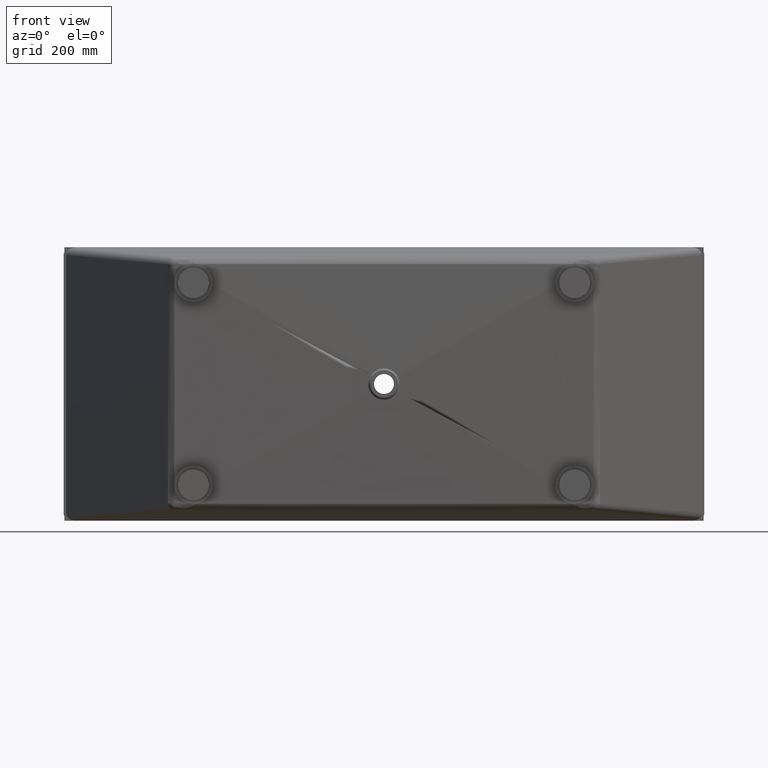
[diagram: clean part render]
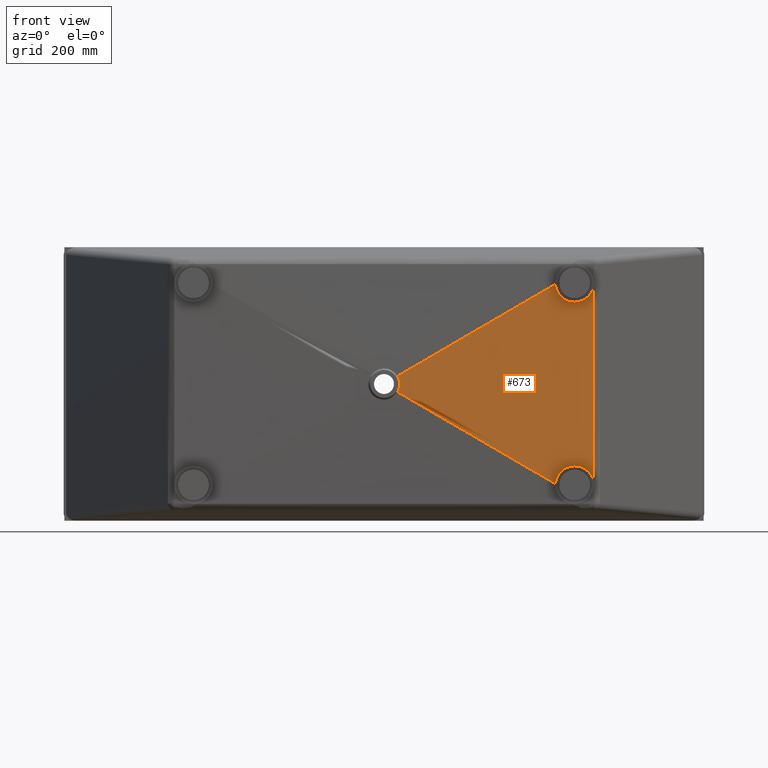
[diagram: same view with one face highlighted and labeled with its STEP entity id]
A machine part, front view. The second image highlights one B-rep face of the part: STEP entity #673.
In plain terms, the highlighted face is a freeform B-spline surface patch.
Its self-contained STEP definition (entity closure, byte-faithful):
#1 = CARTESIAN_POINT ( 'NONE',  ( 89.08577911865384600, -443.5579093821986000, 4.296814860795541900 ) ) ;
#8 = B_SPLINE_CURVE_WITH_KNOTS ( 'NONE', 3,
 ( #7866, #8670, #3863, #3827, #3793, #3141, #2323, #2289, #2265, #2230, #1605, #1496, #1436, #58, #30, #8498, #7661, #5199, #3675, #9519, #8694, #5414 ),
 .UNSPECIFIED., .F., .F.,
 ( 4, 2, 2, 2, 2, 2, 2, 2, 2, 2, 4 ),
 ( 0.02050634972845189600, 0.02592281966418435000, 0.03133928959991680300, 0.03404752456778303200, 0.03675575953564926000, 0.04217222947138171000, 0.04758869940711416000, 0.05300516934284662400, 0.05571340431071284500, 0.05842163927857907400, 0.06383810921431151700 ),
 .UNSPECIFIED. ) ;
#14 = CARTESIAN_POINT ( 'NONE',  ( 163.4870050771078500, -441.8472398374293600, -31.92657811415846300 ) ) ;
#15 = CARTESIAN_POINT ( 'NONE',  ( 519.0890233315819800, -433.7079138635497200, -218.5727802981640500 ) ) ;
#25 = CARTESIAN_POINT ( 'NONE',  ( 162.0604169895836400, -441.8473396646002100, 75.51122056592817000 ) ) ;
#30 = CARTESIAN_POINT ( 'NONE',  ( 39.86275958956091600, -444.6723862094810900, -8.881952212162248700 ) ) ;
#58 = CARTESIAN_POINT ( 'NONE',  ( 40.21120345204343500, -444.6691810121029100, -7.134113389333368400 ) ) ;
#74 = CARTESIAN_POINT ( 'NONE',  ( 522.4090254710392900, -433.6321465014825700, -220.6746138396115700 ) ) ;
#86 = CARTESIAN_POINT ( 'NONE',  ( 247.8143875681586800, -439.8922146051876900, -115.6766530284586500 ) ) ;
#91 = CARTESIAN_POINT ( 'NONE',  ( 35.64712993333063200, -444.7798500122068500, 3.328450813191257100 ) ) ;
#116 = CARTESIAN_POINT ( 'NONE',  ( 140.0340033298088300, -442.3361674385336100, 75.65909023829229300 ) ) ;
#132 = CARTESIAN_POINT ( 'NONE',  ( 142.3792487134288100, -442.3359919000738500, 13.86605105524094800 ) ) ;
#136 = CARTESIAN_POINT ( 'NONE',  ( 523.0648726268797200, -433.6171788554598800, -221.1117344582661700 ) ) ;
#190 = CARTESIAN_POINT ( 'NONE',  ( 291.8434833854123600, -438.9146031776163000, 1.441940893762720800E-010 ) ) ;
#192 = VERTEX_POINT ( 'NONE', #8661 ) ;
#220 = CARTESIAN_POINT ( 'NONE',  ( 97.20544464157450200, -443.3137766450939200, 51.23186424996185200 ) ) ;
#222 = CARTESIAN_POINT ( 'NONE',  ( 524.3599427140462700, -433.5876226068642700, -222.0201363151507500 ) ) ;
#231 = CARTESIAN_POINT ( 'NONE',  ( 524.9976120199745500, -433.5730694608216100, -222.4904519326478600 ) ) ;
#254 = CARTESIAN_POINT ( 'NONE',  ( 65.00420877275458100, -444.0470342619619300, 34.18848369180079800 ) ) ;
#262 = CARTESIAN_POINT ( 'NONE',  ( 526.8660301066407800, -433.5304273292683800, -223.9378582148058300 ) ) ;
#290 = CARTESIAN_POINT ( 'NONE',  ( 75.73896693374881300, -443.8026031213892700, 39.86769738702448500 ) ) ;
#300 = CARTESIAN_POINT ( 'NONE',  ( 528.0583911212228300, -433.5032141163870800, -224.9555414644827100 ) ) ;
#304 = CARTESIAN_POINT ( 'NONE',  ( 376.2376941014731500, -436.9595748324477400, 199.0264110067254800 ) ) ;
#325 = CARTESIAN_POINT ( 'NONE',  ( 290.3834096761036700, -438.9146802776882600, 153.5477797647699600 ) ) ;
#338 = CARTESIAN_POINT ( 'NONE',  ( 65.58045270764417000, -444.0469658495276800, 30.33954901662666300 ) ) ;
#356 = B_SPLINE_CURVE_WITH_KNOTS ( 'NONE', 3,
 ( #6279, #6213, #4858, #4822, #4785, #4756, #4726, #4689, #4657, #4629, #4601, #4262, #4225, #4192, #4156, #4121, #4083, #4047, #4016, #3979, #3949, #3923, #3892, #3469, #3438, #3403, #3370, #3331, #3298, #3265, #3231, #3202 ),
 .UNSPECIFIED., .F., .F.,
 ( 4, 2, 2, 2, 2, 2, 2, 2, 2, 2, 2, 2, 2, 2, 2, 4 ),
 ( 0.003742175289254478400, 0.01309488270796272700, 0.01543305956263979800, 0.01777123641731687100, 0.02244759012667107300, 0.03180029754537940000, 0.03413847440005654500, 0.03647665125473367700, 0.04115300496408785800, 0.04582935867344202500, 0.05050571238279619200, 0.05985841980150440100, 0.06453477351085856700, 0.06687295036553565800, 0.06921112722021274800, 0.07856383463892109600 ),
 .UNSPECIFIED. ) ;
#357 = CARTESIAN_POINT ( 'NONE',  ( 531.4794768132136400, -433.4251346604322100, -228.1631082881704600 ) ) ;
#363 = CARTESIAN_POINT ( 'NONE',  ( 533.5535942096363400, -433.3777969995613800, -230.5061320594111000 ) ) ;
#369 = CARTESIAN_POINT ( 'NONE',  ( 204.9379444473340200, -440.8697668803950500, 95.59277638324493900 ) ) ;
#388 = CARTESIAN_POINT ( 'NONE',  ( 56.45970488319067500, -444.2911595024926900, -13.51710778893646200 ) ) ;
#399 = CARTESIAN_POINT ( 'NONE',  ( 75.12653819567530900, -443.8026625223020600, -44.33512075616268100 ) ) ;
#425 = CARTESIAN_POINT ( 'NONE',  ( 140.7970402001720300, -442.3361133176957800, 62.05872345839577500 ) ) ;
#433 = CARTESIAN_POINT ( 'NONE',  ( 535.8795006225977900, -433.3247147565210200, -233.6991210270486500 ) ) ;
#440 = CARTESIAN_POINT ( 'NONE',  ( 33.40898843134547000, -444.7802795220081300, 15.30687748057007600 ) ) ;
#472 = CARTESIAN_POINT ( 'NONE',  ( 54.26945061176033400, -444.2914654025345800, 28.50926999657710700 ) ) ;
#497 = CARTESIAN_POINT ( 'NONE',  ( 547.9462054373498200, -433.0494000277943800, 269.7559400700710600 ) ) ;
#509 = CARTESIAN_POINT ( 'NONE',  ( 44.13727728353930500, -444.5358305737827300, 20.30821308501129600 ) ) ;
#523 = CARTESIAN_POINT ( 'NONE',  ( 76.91206247088392400, -443.8024758412995000, 29.89167957489978300 ) ) ;
#543 = CARTESIAN_POINT ( 'NONE',  ( 547.9505646631389500, -433.0493909326843300, 215.8055090506096000 ) ) ;
#557 = ORIENTED_EDGE ( 'NONE', *, *, #4126, .T. ) ;
#563 = CARTESIAN_POINT ( 'NONE',  ( 206.4718184309879500, -440.8696794742825800, 1.016940776207805900E-010 ) ) ;
#576 = CARTESIAN_POINT ( 'NONE',  ( 57.07140476074458500, -444.2910629934484100, 2.716062116328711100 ) ) ;
#608 = CARTESIAN_POINT ( 'NONE',  ( 43.14761309719181500, -444.5359762024227200, 24.32190256074412500 ) ) ;
#620 = CARTESIAN_POINT ( 'NONE',  ( 247.1466350792524600, -439.8922488724480800, 142.8934282412101000 ) ) ;
#645 = CARTESIAN_POINT ( 'NONE',  ( 161.3051982110865800, -441.8473887408662800, 91.20893983997464700 ) ) ;
#656 = CARTESIAN_POINT ( 'NONE',  ( 547.9411592431910100, -433.0494104977021800, 323.7058597566531300 ) ) ;
#668 = CARTESIAN_POINT ( 'NONE',  ( 290.1861743555484700, -438.9146900943441700, 164.2087808246383500 ) ) ;
#673 = ADVANCED_FACE ( 'NONE', ( #4370 ), #10224, .T. ) ;
#682 = CARTESIAN_POINT ( 'NONE',  ( 376.1056471223110400, -436.9595810754252100, 212.8774225980277200 ) ) ;
#696 = CARTESIAN_POINT ( 'NONE',  ( 247.2264379721672200, -439.8922446038035900, 139.8744599379436400 ) ) ;
#708 = CARTESIAN_POINT ( 'NONE',  ( 204.2665740098706500, -440.8698025192960000, 115.5403644813734600 ) ) ;
#725 = CARTESIAN_POINT ( 'NONE',  ( 57.07140476074511100, -444.2910629934484100, 2.735016010297770100E-011 ) ) ;
#736 = CARTESIAN_POINT ( 'NONE',  ( 46.39994664144205000, -444.5354475305318300, 2.226988192035503500E-011 ) ) ;
#751 = CARTESIAN_POINT ( 'NONE',  ( 35.72848852213898900, -444.7798320676150800, 1.709821070798162000E-011 ) ) ;
#763 = CARTESIAN_POINT ( 'NONE',  ( 376.0137749372445300, -436.9595851294161500, 222.1076881723957400 ) ) ;
#785 = CARTESIAN_POINT ( 'NONE',  ( 461.9774913747330100, -435.0044971024337900, 272.9067328430748500 ) ) ;
#787 = CARTESIAN_POINT ( 'NONE',  ( 536.3314164933550500, -433.3144011560411900, -234.3515349853655900 ) ) ;
#796 = CARTESIAN_POINT ( 'NONE',  ( 290.0489616049476400, -438.9146962009224900, 171.3105005460785700 ) ) ;
#814 = CARTESIAN_POINT ( 'NONE',  ( 248.6058184591979900, -439.8921722438227000, 73.16660546809465900 ) ) ;
#878 = CARTESIAN_POINT ( 'NONE',  ( 376.6663964466573000, -436.9595542338808500, 148.1939136137090400 ) ) ;
#887 = CARTESIAN_POINT ( 'NONE',  ( 462.3084920422222100, -435.0044722480331500, 181.9996818196256600 ) ) ;
#910 = CARTESIAN_POINT ( 'NONE',  ( 45.16591149291567600, -444.5356664232809300, 15.13418583637438200 ) ) ;
#924 = CARTESIAN_POINT ( 'NONE',  ( 55.86479938702759500, -444.2912486404496200, 18.82599765626215300 ) ) ;
#950 = CARTESIAN_POINT ( 'NONE',  ( 32.52832239900588700, -444.7804223434973800, -17.89705725842921800 ) ) ;
#955 = CARTESIAN_POINT ( 'NONE',  ( 547.9437621561941100, -433.0494051058603900, -296.7309672628401200 ) ) ;
#985 = CARTESIAN_POINT ( 'NONE',  ( 537.1986769454476900, -433.2946087995410900, -235.6691644542883600 ) ) ;
#1052 = CARTESIAN_POINT ( 'NONE',  ( 43.27764381563678600, -444.5359575777520100, -23.82581623655325100 ) ) ;
#1152 = CARTESIAN_POINT ( 'NONE',  ( 547.9584782486857600, -433.0493742876176400, -26.97584768982256900 ) ) ;
#1164 = CARTESIAN_POINT ( 'NONE',  ( 162.5588992260375700, -441.8473061107019400, 63.68528723907726200 ) ) ;
#1167 = ORIENTED_EDGE ( 'NONE', *, *, #6933, .F. ) ;
#1208 = CARTESIAN_POINT ( 'NONE',  ( 119.3673253088956200, -442.8249021942420400, 52.54860387338914100 ) ) ;
#1214 = CARTESIAN_POINT ( 'NONE',  ( 205.0856528048667800, -440.8697588045107000, -90.59028145394057700 ) ) ;
#1226 = CARTESIAN_POINT ( 'NONE',  ( 56.99385063305174300, -444.2910755842701700, 5.432026856416547900 ) ) ;
#1237 = CARTESIAN_POINT ( 'NONE',  ( 141.4499070044339500, -442.3360650128825600, 48.37819653882956300 ) ) ;
#1268 = CARTESIAN_POINT ( 'NONE',  ( 247.3036976179615200, -439.8922407124742900, 136.8530744159778900 ) ) ;
#1279 = CARTESIAN_POINT ( 'NONE',  ( 46.32062704778682200, -444.5354624071504200, -4.378429038035593000 ) ) ;
#1286 = CARTESIAN_POINT ( 'NONE',  ( 161.4044363302599300, -441.8473823967336800, 89.25101609456245900 ) ) ;
#1308 = CARTESIAN_POINT ( 'NONE',  ( 376.1500362288971900, -436.9595789796557600, 208.2607708040148700 ) ) ;
#1318 = CARTESIAN_POINT ( 'NONE',  ( 204.3547953492763700, -440.8697979000159500, 113.0507305261198400 ) ) ;
#1319 = CARTESIAN_POINT ( 'NONE',  ( 35.26320924096099000, -444.7108726734521200, 20.54267616742686200 ) ) ;
#1337 = CARTESIAN_POINT ( 'NONE',  ( 462.0466012448818000, -435.0044920649788800, 255.8676961136589500 ) ) ;
#1346 = CARTESIAN_POINT ( 'NONE',  ( 290.2524771549401000, -438.9146868015348000, 160.6556398786569000 ) ) ;
#1355 = CARTESIAN_POINT ( 'NONE',  ( 162.2265777350683000, -441.8473284799674200, 71.56924279031119300 ) ) ;
#1377 = CARTESIAN_POINT ( 'NONE',  ( 53.89117804263650400, -444.2915130689610800, 30.39906819731951200 ) ) ;
#1386 = B_SPLINE_CURVE_WITH_KNOTS ( 'NONE', 3,
 ( #5758, #5833, #5683, #5579, #5569, #5517, #5404, #5346, #5315, #5233 ),
 .UNSPECIFIED., .F., .F.,
 ( 4, 2, 2, 2, 4 ),
 ( 2.101734810654223300, 2.338893345954235100, 2.457472613604241300, 2.516762247429244100, 2.576051881254247000 ),
 .UNSPECIFIED. ) ;
#1388 = CARTESIAN_POINT ( 'NONE',  ( 86.80990336046734500, -443.5581539515845300, 42.45037617509748200 ) ) ;
#1401 = CARTESIAN_POINT ( 'NONE',  ( 67.74286288004766700, -444.0466784563651600, 3.242884444259194900 ) ) ;
#1410 = CARTESIAN_POINT ( 'NONE',  ( 78.41432099935073600, -443.8022939192819100, 3.769706772189678600 ) ) ;
#1420 = CARTESIAN_POINT ( 'NONE',  ( 35.08690827684968400, -444.7799680649953900, -8.254843452688211500 ) ) ;
#1433 = CARTESIAN_POINT ( 'NONE',  ( 97.09251817356131700, -443.3137867812855600, 52.39504261649012300 ) ) ;
#1436 = CARTESIAN_POINT ( 'NONE',  ( 40.67933979171238000, -444.6648406721505500, -3.599466813416599900 ) ) ;
#1442 = CARTESIAN_POINT ( 'NONE',  ( 161.5036744494332500, -441.8473760526010200, 87.29309234915025700 ) ) ;
#1455 = CARTESIAN_POINT ( 'NONE',  ( 547.9418223684614300, -433.0494091290942200, 316.9621482169887900 ) ) ;
#1456 = CARTESIAN_POINT ( 'NONE',  ( 537.6152951908542300, -433.2851009754699000, -236.3360567003802500 ) ) ;
#1471 = CARTESIAN_POINT ( 'NONE',  ( 494.9999999999998900, -434.2573924240073800, -212.5000000000000900 ) ) ;
#1493 = CARTESIAN_POINT ( 'NONE',  ( 142.4430697151696000, -442.3359866967822400, 6.982365133404236800E-011 ) ) ;
#1496 = CARTESIAN_POINT ( 'NONE',  ( 40.79873445124526700, -444.6637162883699800, -1.812608313245124500 ) ) ;
#1513 = CARTESIAN_POINT ( 'NONE',  ( 249.1576509082004200, -439.8921413259494700, -12.20702805044624000 ) ) ;
#1514 = CARTESIAN_POINT ( 'NONE',  ( 538.8149434994172700, -433.2577236109739300, -238.3605721090916100 ) ) ;
#1516 = VERTEX_POINT ( 'NONE', #1319 ) ;
#1537 = CARTESIAN_POINT ( 'NONE',  ( 377.0018701599541400, -436.9595376251399400, -92.65986284031883700 ) ) ;
#1549 = CARTESIAN_POINT ( 'NONE',  ( 291.0237654833221700, -438.9146475754963000, 114.3895191402203000 ) ) ;
#1562 = CARTESIAN_POINT ( 'NONE',  ( 86.11946312122277900, -443.5582204350589600, 48.63482467563611100 ) ) ;
#1571 = CARTESIAN_POINT ( 'NONE',  ( 32.12001400925446900, -444.7804813317762900, 18.97734856902212600 ) ) ;
#1590 = CARTESIAN_POINT ( 'NONE',  ( 53.62829429314182100, -444.2915413321551900, 31.64774173912236000 ) ) ;
#1601 = CARTESIAN_POINT ( 'NONE',  ( 64.37741624440361900, -444.0471019272286000, 37.99143124767815700 ) ) ;
#1605 = CARTESIAN_POINT ( 'NONE',  ( 40.79921507060196700, -444.6637118260534300, 1.801705887813713800 ) ) ;
#1624 = CARTESIAN_POINT ( 'NONE',  ( 32.66151892483328100, -444.7804015934938800, 17.53362330851445300 ) ) ;
#1654 = CARTESIAN_POINT ( 'NONE',  ( 206.0478771398393300, -440.8697045187591900, 50.44271390970809700 ) ) ;
#1665 = CARTESIAN_POINT ( 'NONE',  ( 76.30194470837379600, -443.8025431837692200, 35.35542256998986200 ) ) ;
#1697 = CARTESIAN_POINT ( 'NONE',  ( 291.5248864472766300, -438.9146207305704500, 71.55123451928545800 ) ) ;
#1713 = CARTESIAN_POINT ( 'NONE',  ( 43.01321576384372500, -444.5359968469047700, 24.81408625875934600 ) ) ;
#1758 = CARTESIAN_POINT ( 'NONE',  ( 376.0598002890899900, -436.9595833167812800, 217.4926796122955200 ) ) ;
#1784 = CARTESIAN_POINT ( 'NONE',  ( 85.99688444978461600, -443.5582329511867100, 49.65870105028498900 ) ) ;
#1796 = CARTESIAN_POINT ( 'NONE',  ( 53.75976237599385100, -444.2915306525513900, 31.02415115636340200 ) ) ;
#1817 = CARTESIAN_POINT ( 'NONE',  ( 75.25221449792620400, -443.8026543475439200, 43.44539162349259700 ) ) ;
#1820 = CARTESIAN_POINT ( 'NONE',  ( 540.2808089945922300, -433.2242717816172300, -241.1233921596909500 ) ) ;
#1829 = CARTESIAN_POINT ( 'NONE',  ( 541.4826925174296500, -433.1968455169735500, -244.0115543071414700 ) ) ;
#1833 = CARTESIAN_POINT ( 'NONE',  ( 205.6354757961939900, -440.8697282971588700, 70.55196821883485800 ) ) ;
#1857 = CARTESIAN_POINT ( 'NONE',  ( 542.2837299987357900, -433.1785664957763500, -246.2253353534222500 ) ) ;
#1868 = CARTESIAN_POINT ( 'NONE',  ( 161.6004094028885700, -441.8473698114572700, 85.33280592341761000 ) ) ;
#1890 = CARTESIAN_POINT ( 'NONE',  ( 78.41432099935123300, -443.8022939192819100, 3.796249491808210300E-011 ) ) ;
#1899 = CARTESIAN_POINT ( 'NONE',  ( 87.02234935169777000, -443.5581328029788900, 40.37362264964181700 ) ) ;
#1921 = CARTESIAN_POINT ( 'NONE',  ( 98.32443067766432400, -443.3136724453710300, 38.33839167258804500 ) ) ;
#1933 = CARTESIAN_POINT ( 'NONE',  ( 462.1124084175957600, -435.0044871244823000, -238.8255438632993700 ) ) ;
#1936 = CARTESIAN_POINT ( 'NONE',  ( 34.46314352030020700, -444.7800909211587200, 11.45380538732872100 ) ) ;
#1958 = CARTESIAN_POINT ( 'NONE',  ( 99.20030610550543300, -443.3135839796784100, 24.06256458471520100 ) ) ;
#1967 = CARTESIAN_POINT ( 'NONE',  ( 542.5339859085492000, -433.1728558910090800, -246.9712186134657400 ) ) ;
#1970 = CARTESIAN_POINT ( 'NONE',  ( 162.8450966016873200, -441.8472861076413700, 55.76945376549799200 ) ) ;
#1985 = VERTEX_POINT ( 'NONE', #5813 ) ;
#1994 = CARTESIAN_POINT ( 'NONE',  ( 547.9580882438111800, -433.0493751120564500, 53.95169515161474300 ) ) ;
#2003 = CARTESIAN_POINT ( 'NONE',  ( 118.2296356840746700, -442.8249903805070700, 68.30080487206369400 ) ) ;
#2054 = CARTESIAN_POINT ( 'NONE',  ( 462.0008350425204600, -435.0044955260058300, 267.2273729088602700 ) ) ;
#2070 = CARTESIAN_POINT ( 'NONE',  ( 247.8143875681532200, -439.8922146051876900, 115.6766530287026200 ) ) ;
#2077 = CARTESIAN_POINT ( 'NONE',  ( 161.6004094028963000, -441.8473698114572100, -85.33280592325959900 ) ) ;
#2097 = CARTESIAN_POINT ( 'NONE',  ( 139.7163027827110400, -442.3361898468568300, 80.73204349546792000 ) ) ;
#2109 = CARTESIAN_POINT ( 'NONE',  ( 290.1176901491983200, -438.9146936872257900, 167.7598453649052300 ) ) ;
#2130 = CARTESIAN_POINT ( 'NONE',  ( 75.37769852966212600, -443.8026404701712400, 42.55447807611744100 ) ) ;
#2143 = B_SPLINE_CURVE_WITH_KNOTS ( 'NONE', 3,
 ( #3500, #2672, #2338, #2277, #2210, #1967, #1857, #1829, #1820, #1514, #1456, #985, #787, #433, #363, #357, #300, #262, #231, #222, #136, #74, #15, #8593, #7811, #7093, #4527, #3052, #2381, #2351, #1471 ),
 .UNSPECIFIED., .F., .F.,
 ( 4, 2, 2, 2, 1, 2, 2, 2, 2, 2, 2, 2, 2, 2, 2, 4 ),
 ( 0.05669853984181059300, 0.06607247645944433500, 0.06841596061385277200, 0.07075944476826119500, 0.07544641307707807000, 0.08013338138589494500, 0.08247686554030338200, 0.08482034969471181900, 0.09419428631234544300, 0.09888125462116213700, 0.1012247387755704800, 0.1035682229299788200, 0.1129421595476118700, 0.1176291278564285700, 0.1223160961652452500, 0.1316900327828786400 ),
 .UNSPECIFIED. ) ;
#2152 = CARTESIAN_POINT ( 'NONE',  ( 67.14503918057104700, -444.0467632629621400, -16.15269992093319100 ) ) ;
#2210 = CARTESIAN_POINT ( 'NONE',  ( 543.0004085886354200, -433.1622125263500600, -248.4791711005019000 ) ) ;
#2223 = CARTESIAN_POINT ( 'NONE',  ( 77.83037347794662300, -443.8023670234318300, 18.78829205300495200 ) ) ;
#2230 = CARTESIAN_POINT ( 'NONE',  ( 40.68027251825883200, -444.6648322427988700, 3.597438992636970300 ) ) ;
#2244 = CARTESIAN_POINT ( 'NONE',  ( 64.88303898419478300, -444.0470483179333300, 34.95321997007598500 ) ) ;
#2260 = CARTESIAN_POINT ( 'NONE',  ( 462.4786405827788900, -435.0044590704646300, 113.7693877588192900 ) ) ;
#2265 = CARTESIAN_POINT ( 'NONE',  ( 40.32479812204454800, -444.6681277081174200, 6.273880270816390800 ) ) ;
#2277 = CARTESIAN_POINT ( 'NONE',  ( 543.2169682147537100, -433.1572708014143100, -249.2430206150038700 ) ) ;
#2289 = CARTESIAN_POINT ( 'NONE',  ( 40.17658773636515700, -444.6694923943690600, 7.164337733182452300 ) ) ;
#2305 = CARTESIAN_POINT ( 'NONE',  ( 96.86082483640723200, -443.3138073436362000, 54.71588296911532000 ) ) ;
#2319 = CARTESIAN_POINT ( 'NONE',  ( 118.5640784597420800, -442.8249645703444900, 64.02555671494211300 ) ) ;
#2323 = CARTESIAN_POINT ( 'NONE',  ( 39.82114692306447500, -444.6727341631974500, 8.934491532489925400 ) ) ;
#2337 = CARTESIAN_POINT ( 'NONE',  ( 85.87408058109429000, -443.5582403420774500, 50.68148385759334900 ) ) ;
#2338 = CARTESIAN_POINT ( 'NONE',  ( 544.2034129406812300, -433.1347604736024600, -253.0659884048557700 ) ) ;
#2342 = ORIENTED_EDGE ( 'NONE', *, *, #4650, .T. ) ;
#2349 = CARTESIAN_POINT ( 'NONE',  ( 547.9437621561941100, -433.0494051058605600, 296.7309672633832600 ) ) ;
#2351 = CARTESIAN_POINT ( 'NONE',  ( 498.1448629676376600, -434.1857025440094200, -212.4999999999999400 ) ) ;
#2378 = CARTESIAN_POINT ( 'NONE',  ( 139.8245103116945500, -442.3361818516514200, 79.04322751927524800 ) ) ;
#2381 = CARTESIAN_POINT ( 'NONE',  ( 501.2555512861732700, -434.1147677007663200, -212.7940916322960200 ) ) ;
#2396 = CARTESIAN_POINT ( 'NONE',  ( 462.5868132942611100, -435.0044505842838600, 22.75610006036054500 ) ) ;
#2408 = CARTESIAN_POINT ( 'NONE',  ( 96.97667150498428200, -443.3137970624608800, 53.55546279280272200 ) ) ;
#2430 = CARTESIAN_POINT ( 'NONE',  ( 46.00774747152259200, -444.5355195720014200, 8.724710698254742900 ) ) ;
#2462 = CARTESIAN_POINT ( 'NONE',  ( 121.0329653848304900, -442.8247618024365700, 11.75666288507654600 ) ) ;
#2464 = ORIENTED_EDGE ( 'NONE', *, *, #9607, .F. ) ;
#2492 = CARTESIAN_POINT ( 'NONE',  ( 97.93645310011169200, -443.3137091477532300, 43.04109236291947100 ) ) ;
#2528 = CARTESIAN_POINT ( 'NONE',  ( 290.8017487872369900, -438.9146590181929900, 128.6369883150487700 ) ) ;
#2542 = CARTESIAN_POINT ( 'NONE',  ( 78.34029012758821900, -443.8023034102706100, 7.539334836997098500 ) ) ;
#2599 = B_SPLINE_CURVE_WITH_KNOTS ( 'NONE', 3,
 ( #8034, #8025, #8042, #8049, #8056, #8062, #8076, #8084, #8089, #8096 ),
 .UNSPECIFIED., .F., .F.,
 ( 4, 2, 2, 2, 4 ),
 ( 2.563388860252092400, 2.800547369560657100, 2.919126624214939600, 2.978416251542080700, 3.037705878869221700 ),
 .UNSPECIFIED. ) ;
#2612 = CARTESIAN_POINT ( 'NONE',  ( 462.1551052350767500, -435.0044839096768200, 227.4630763291366100 ) ) ;
#2630 = CARTESIAN_POINT ( 'NONE',  ( 376.5177629364035900, -436.9595614167927200, 166.6838796378922300 ) ) ;
#2643 = CARTESIAN_POINT ( 'NONE',  ( 249.1576509082001400, -439.8921413259494700, 1.229440624893939600E-010 ) ) ;
#2672 = CARTESIAN_POINT ( 'NONE',  ( 544.6944096150589300, -433.1235548040442000, -256.1560460689002500 ) ) ;
#2676 = CARTESIAN_POINT ( 'NONE',  ( 67.74286288004869000, -444.0466784563651600, -3.242884444193880400 ) ) ;
#2701 = CARTESIAN_POINT ( 'NONE',  ( 87.61835228376361300, -443.5580722675688900, 34.11476452377026200 ) ) ;
#2712 = CARTESIAN_POINT ( 'NONE',  ( 547.9443856673000300, -433.0494038109757200, -289.9872203156102700 ) ) ;
#2716 = CARTESIAN_POINT ( 'NONE',  ( 35.72848852213841300, -444.7798320676150200, 1.664295799811672500 ) ) ;
#2734 = CARTESIAN_POINT ( 'NONE',  ( 46.39994664144149500, -444.5354475305317700, 2.189267930101245900 ) ) ;
#2774 = CARTESIAN_POINT ( 'NONE',  ( 65.00420877276423000, -444.0470342619618100, -34.18848369173914400 ) ) ;
#2798 = CARTESIAN_POINT ( 'NONE',  ( 377.0018701599523800, -436.9595376251401100, 92.65986284069191500 ) ) ;
#2808 = CARTESIAN_POINT ( 'NONE',  ( 54.39004362442785400, -444.2914498501431800, -27.87444779428566100 ) ) ;
#2823 = CARTESIAN_POINT ( 'NONE',  ( 89.08577911865431500, -443.5579093821986000, 4.327126770464664300E-011 ) ) ;
#2838 = CARTESIAN_POINT ( 'NONE',  ( 32.91770666298209800, -444.7803605275644300, -16.79739679363221000 ) ) ;
#2854 = CARTESIAN_POINT ( 'NONE',  ( 462.1551052350783900, -435.0044839096767600, -227.4630763286788800 ) ) ;
#2859 = CARTESIAN_POINT ( 'NONE',  ( 140.2354373820289200, -442.3361533834004100, 72.26760162183886400 ) ) ;
#2875 = CARTESIAN_POINT ( 'NONE',  ( 547.9462054373498200, -433.0494000277943200, -269.7559400695278100 ) ) ;
#2876 = CARTESIAN_POINT ( 'NONE',  ( 377.2151483398369600, -436.9595268809500800, -18.53636016970261100 ) ) ;
#2889 = CARTESIAN_POINT ( 'NONE',  ( 54.85896070691454400, -444.2913885152861400, 25.32367546326345600 ) ) ;
#2900 = CARTESIAN_POINT ( 'NONE',  ( 43.40767453406081000, -444.5359389530812600, 23.32972991244230300 ) ) ;
#2909 = CARTESIAN_POINT ( 'NONE',  ( 96.62119581262631100, -443.3138255164569200, 57.02857006874063500 ) ) ;
#2926 = VERTEX_POINT ( 'NONE', #9556 ) ;
#2931 = CARTESIAN_POINT ( 'NONE',  ( 161.0998650603391700, -441.8474000906127200, 95.11789601931536700 ) ) ;
#2943 = CARTESIAN_POINT ( 'NONE',  ( 547.9573190321194700, -433.0493767348368100, 80.92747089925796900 ) ) ;
#2962 = CARTESIAN_POINT ( 'NONE',  ( 65.35784977729622400, -444.0469927171345100, 31.88585711617552900 ) ) ;
#2966 = VERTEX_POINT ( 'NONE', #3100 ) ;
#2976 = CARTESIAN_POINT ( 'NONE',  ( 35.32625812594508800, -444.7799182091402500, 6.623838546070951200 ) ) ;
#2988 = CARTESIAN_POINT ( 'NONE',  ( 65.12208910761128800, -444.0470204136859700, -33.42094149986387900 ) ) ;
#3005 = CARTESIAN_POINT ( 'NONE',  ( 99.75723723795691500, -443.3135248451153500, 4.823996881833011200 ) ) ;
#3014 = CARTESIAN_POINT ( 'NONE',  ( 75.85413459079472900, -443.8025909772288200, -38.96743520544210100 ) ) ;
#3019 = CARTESIAN_POINT ( 'NONE',  ( 206.4718184309882600, -440.8696794742825800, -10.09727275166964900 ) ) ;
#3036 = CARTESIAN_POINT ( 'NONE',  ( 462.5190039394007000, -435.0044559140150700, -91.01883729840422200 ) ) ;
#3049 = CARTESIAN_POINT ( 'NONE',  ( 44.79066824411063400, -444.5357286733430400, 17.22889859122212600 ) ) ;
#3052 = CARTESIAN_POINT ( 'NONE',  ( 505.8709498788250600, -434.0094967312626900, -213.6709639571883500 ) ) ;
#3082 = CARTESIAN_POINT ( 'NONE',  ( 119.1826942306105700, -442.8249168908753900, 55.43008282497190500 ) ) ;
#3097 = CARTESIAN_POINT ( 'NONE',  ( 291.6437662357544700, -438.9146142298346800, -57.25080594618144400 ) ) ;
#3100 = CARTESIAN_POINT ( 'NONE',  ( 445.1155660091569100, -435.3884320605066000, -259.1024648032399700 ) ) ;
#3101 = CARTESIAN_POINT ( 'NONE',  ( 43.65775281442174100, -444.5359023375194700, -22.32842916003163900 ) ) ;
#3110 = CARTESIAN_POINT ( 'NONE',  ( 67.66707038031998400, -444.0466894972703900, 6.485680846706823200 ) ) ;
#3141 = CARTESIAN_POINT ( 'NONE',  ( 39.61510112343049200, -444.6745999918839500, 9.808867958368779200 ) ) ;
#3177 = CARTESIAN_POINT ( 'NONE',  ( 32.66151892484386800, -444.7804015934938800, -17.53362330848494100 ) ) ;
#3193 = CARTESIAN_POINT ( 'NONE',  ( 462.5868132942613300, -435.0044505842838600, -22.75610005990213800 ) ) ;
#3199 = CARTESIAN_POINT ( 'NONE',  ( 290.8017487872415400, -438.9146590181929900, -128.6369883147618800 ) ) ;
#3202 = CARTESIAN_POINT ( 'NONE',  ( 495.0000000000000000, -434.2573924240073200, 212.4999999999998900 ) ) ;
#3224 = ORIENTED_EDGE ( 'NONE', *, *, #6360, .F. ) ;
#3231 = CARTESIAN_POINT ( 'NONE',  ( 491.8775619003396900, -434.3285711096826300, 212.4999999999998300 ) ) ;
#3232 = CARTESIAN_POINT ( 'NONE',  ( 204.7799834773950900, -440.8697754053718500, -100.5881879474345200 ) ) ;
#3251 = EDGE_CURVE ( 'NONE', #5996, #5614, #4984, .T. ) ;
#3265 = CARTESIAN_POINT ( 'NONE',  ( 488.7726390657571200, -434.3993268312003100, 212.7899142598111300 ) ) ;
#3287 = CARTESIAN_POINT ( 'NONE',  ( 45.77433205894516300, -444.5355614290718300, -10.88168175511580300 ) ) ;
#3298 = CARTESIAN_POINT ( 'NONE',  ( 484.9137950915669000, -434.4872219472296700, 213.5215811701060600 ) ) ;
#3308 = ORIENTED_EDGE ( 'NONE', *, *, #3983, .F. ) ;
#3331 = CARTESIAN_POINT ( 'NONE',  ( 484.1419474647467500, -434.5048006746979500, 213.6868226335905900 ) ) ;
#3338 = CARTESIAN_POINT ( 'NONE',  ( 547.9431225448944400, -433.0494064326442200, 303.4747003503573500 ) ) ;
#3360 = CARTESIAN_POINT ( 'NONE',  ( 140.1361080424454400, -442.3361603456390900, 73.96452774011385100 ) ) ;
#3370 = CARTESIAN_POINT ( 'NONE',  ( 482.6058820223430000, -434.5397798511545500, 214.0540566299015100 ) ) ;
#3373 = CARTESIAN_POINT ( 'NONE',  ( 121.1001534765634900, -442.8247557709487400, 5.920105501271669500E-011 ) ) ;
#3383 = CARTESIAN_POINT ( 'NONE',  ( 290.3834096761086700, -438.9146802776882600, -153.5477797644836100 ) ) ;
#3394 = CARTESIAN_POINT ( 'NONE',  ( 67.74286288004817900, -444.0466784563651600, 3.265632751052990200E-011 ) ) ;
#3403 = CARTESIAN_POINT ( 'NONE',  ( 481.8451851817167200, -434.5571001274001900, 214.2551429297337500 ) ) ;
#3405 = CARTESIAN_POINT ( 'NONE',  ( 66.20497192104709000, -444.0468887149082200, 25.67064625934515100 ) ) ;
#3430 = CARTESIAN_POINT ( 'NONE',  ( 247.3809572637557900, -439.8922368211449900, 133.8316888940121300 ) ) ;
#3438 = CARTESIAN_POINT ( 'NONE',  ( 479.5846694728084600, -434.6085626403871100, 214.9097790373653300 ) ) ;
#3469 = CARTESIAN_POINT ( 'NONE',  ( 478.1063783301861500, -434.6422076402963100, 215.4145939223386700 ) ) ;
#3483 = CARTESIAN_POINT ( 'NONE',  ( 96.74113486122162400, -443.3138187609603200, -55.87273565745601900 ) ) ;
#3492 = CARTESIAN_POINT ( 'NONE',  ( 141.1478140790991600, -442.3360878396818500, 55.23528506064777600 ) ) ;
#3500 = CARTESIAN_POINT ( 'NONE',  ( 544.8960053097768000, -433.1189468927319700, -259.2768564836876500 ) ) ;
#3533 = CARTESIAN_POINT ( 'NONE',  ( 32.79137062816349900, -444.7803809662426000, -17.16701555622430000 ) ) ;
#3550 = CARTESIAN_POINT ( 'NONE',  ( 97.09251817357051100, -443.3137867812855600, -52.39504261639648800 ) ) ;
#3558 = CARTESIAN_POINT ( 'NONE',  ( 121.1001534765630500, -442.8247557709487400, 5.878360923907950000 ) ) ;
#3563 = CARTESIAN_POINT ( 'NONE',  ( 291.8434833854125800, -438.9146031776163000, -14.31680542353169700 ) ) ;
#3568 = CARTESIAN_POINT ( 'NONE',  ( 97.74246431133536800, -443.3137274989443900, 45.39244270808517700 ) ) ;
#3589 = CARTESIAN_POINT ( 'NONE',  ( 140.4340960611959300, -442.3361394589230700, 68.87374938528888900 ) ) ;
#3596 = CARTESIAN_POINT ( 'NONE',  ( 161.5036744494411200, -441.8473760526010200, -87.29309234899243100 ) ) ;
#3609 = CARTESIAN_POINT ( 'NONE',  ( 247.3809572637618700, -439.8922368211450500, -133.8316888937686400 ) ) ;
#3614 = CARTESIAN_POINT ( 'NONE',  ( 86.35673803047093600, -443.5581978867561500, 46.57978556726412500 ) ) ;
#3651 = CARTESIAN_POINT ( 'NONE',  ( 163.7255248183830900, -441.8472221645177500, 15.97553591942375900 ) ) ;
#3663 = CARTESIAN_POINT ( 'NONE',  ( 247.9437417126536600, -439.8922078188931600, 109.6135426536270500 ) ) ;
#3674 = CARTESIAN_POINT ( 'NONE',  ( 248.4252423274572000, -439.8921822043597000, 85.33629057760708700 ) ) ;
#3675 = CARTESIAN_POINT ( 'NONE',  ( 38.00348498984550400, -444.6886955170780900, -14.88599760864601300 ) ) ;
#3679 = VERTEX_POINT ( 'NONE', #7730 ) ;
#3690 = CARTESIAN_POINT ( 'NONE',  ( 163.7859859537756800, -441.8472176226156900, 8.044712676295510400E-011 ) ) ;
#3701 = CARTESIAN_POINT ( 'NONE',  ( 204.4430166886820900, -440.8697932807359100, 110.5610965708661800 ) ) ;
#3712 = CARTESIAN_POINT ( 'NONE',  ( 54.14549383159054900, -444.2914811741981700, 29.14122133870857200 ) ) ;
#3725 = CARTESIAN_POINT ( 'NONE',  ( 43.53443302434207900, -444.5359205227449000, 22.83054740916554000 ) ) ;
#3734 = ORIENTED_EDGE ( 'NONE', *, *, #3251, .F. ) ;
#3735 = CARTESIAN_POINT ( 'NONE',  ( 32.79137062815328800, -444.7803809662427700, 17.16701555625363400 ) ) ;
#3744 = CARTESIAN_POINT ( 'NONE',  ( 86.47238548179919300, -443.5581867662930300, 45.54944135195294300 ) ) ;
#3755 = CARTESIAN_POINT ( 'NONE',  ( 161.2026841809735300, -441.8473957685706600, 93.16377604229148800 ) ) ;
#3777 = CARTESIAN_POINT ( 'NONE',  ( 247.5295297857250000, -439.8922292582660700, 127.7834963534042700 ) ) ;
#3793 = CARTESIAN_POINT ( 'NONE',  ( 38.91423883035147200, -444.6808569047241800, 12.40074645919934300 ) ) ;
#3807 = CARTESIAN_POINT ( 'NONE',  ( 140.0340033298171500, -442.3361674385336100, -75.65909023815588300 ) ) ;
#3812 = CARTESIAN_POINT ( 'NONE',  ( 118.6715629611251000, -442.8249564026955900, 62.59671004597964800 ) ) ;
#3821 = CARTESIAN_POINT ( 'NONE',  ( 54.14549383160075300, -444.2914811741981100, -29.14122133865751300 ) ) ;
#3825 = CARTESIAN_POINT ( 'NONE',  ( 247.4562674634189000, -439.8922330003085800, 130.8084641437922100 ) ) ;
#3827 = CARTESIAN_POINT ( 'NONE',  ( 38.33696904598910700, -444.6858965870999300, 14.08710038771636500 ) ) ;
#3847 = CARTESIAN_POINT ( 'NONE',  ( 204.5290121237749200, -440.8697887430936400, 108.0693622900251300 ) ) ;
#3854 = CARTESIAN_POINT ( 'NONE',  ( 75.62058413680871600, -443.8026154616684900, -40.76521860137101100 ) ) ;
#3863 = CARTESIAN_POINT ( 'NONE',  ( 36.96508189336743300, -444.6974142468136500, 17.37770232395160600 ) ) ;
#3892 = CARTESIAN_POINT ( 'NONE',  ( 473.7560075992963100, -434.7411881894284400, 217.1302693267518300 ) ) ;
#3893 = CARTESIAN_POINT ( 'NONE',  ( 43.01321576384864900, -444.5359968469049900, -24.81408625872981900 ) ) ;
#3904 = B_SPLINE_CURVE_WITH_KNOTS ( 'NONE', 3,
 ( #8130, #5959, #5812, #5738, #5325, #5257, #5216, #5178, #5140, #5105 ),
 .UNSPECIFIED., .F., .F.,
 ( 4, 3, 3, 4 ),
 ( 0.05128948093863908200, 0.2000000000020880400, 0.3600000000050923600, 0.5698431939279112700 ),
 .UNSPECIFIED. ) ;
#3919 = CARTESIAN_POINT ( 'NONE',  ( 86.35673803048034400, -443.5581978867561500, -46.57978556718118300 ) ) ;
#3923 = CARTESIAN_POINT ( 'NONE',  ( 470.9676660759890900, -434.8045868398341400, 218.5405397441672300 ) ) ;
#3932 = CARTESIAN_POINT ( 'NONE',  ( 462.0910600088543600, -435.0044887318850900, -244.5067776306096300 ) ) ;
#3947 = CARTESIAN_POINT ( 'NONE',  ( 547.9449922573165800, -433.0494025499152700, -283.2434602335827700 ) ) ;
#3949 = CARTESIAN_POINT ( 'NONE',  ( 466.9599911855031600, -434.8956326751251100, 221.0722953732919800 ) ) ;
#3957 = CARTESIAN_POINT ( 'NONE',  ( 97.20544464158344100, -443.3137766450937500, -51.23186424986816700 ) ) ;
#3974 = CARTESIAN_POINT ( 'NONE',  ( 376.1944253354868100, -436.9595768838863700, -203.6441190096300600 ) ) ;
#3979 = CARTESIAN_POINT ( 'NONE',  ( 465.6723727206556300, -434.9248711764499300, 221.9742806695349500 ) ) ;
#3980 = CARTESIAN_POINT ( 'NONE',  ( 140.1361080424535700, -442.3361603456390300, -73.96452773997724300 ) ) ;
#3983 = EDGE_CURVE ( 'NONE', #1985, #192, #2143, .T. ) ;
#4011 = CARTESIAN_POINT ( 'NONE',  ( 118.6715629611336200, -442.8249564026954200, -62.59671004586454800 ) ) ;
#4016 = CARTESIAN_POINT ( 'NONE',  ( 463.1981037458864400, -434.9810277618145200, 223.8854555415918800 ) ) ;
#4017 = CARTESIAN_POINT ( 'NONE',  ( 118.1154262756993900, -442.8249958652159500, -69.72274249092093600 ) ) ;
#4026 = CARTESIAN_POINT ( 'NONE',  ( 247.4562674634247500, -439.8922330003085200, -130.8084641435486600 ) ) ;
#4037 = CARTESIAN_POINT ( 'NONE',  ( 163.6062649477463000, -441.8472310009735200, -23.95105701671069600 ) ) ;
#4047 = CARTESIAN_POINT ( 'NONE',  ( 462.0101577675461600, -435.0079752743590100, 224.8954774894098100 ) ) ;
#4076 = CARTESIAN_POINT ( 'NONE',  ( 53.75976237599940100, -444.2915306525516100, -31.02415115632171800 ) ) ;
#4083 = CARTESIAN_POINT ( 'NONE',  ( 459.7318079257115100, -435.0596277747473000, 227.0234664660881100 ) ) ;
#4121 = CARTESIAN_POINT ( 'NONE',  ( 458.6414020556124500, -435.0843328068010000, 228.1414312743857200 ) ) ;
#4126 = EDGE_CURVE ( 'NONE', #1516, #2926, #8, .T. ) ;
#4127 = CARTESIAN_POINT ( 'NONE',  ( 547.9580882438114000, -433.0493751120564500, -53.95169515107131300 ) ) ;
#4156 = CARTESIAN_POINT ( 'NONE',  ( 457.0802642946976000, -435.1196785479761500, 229.9007919363273800 ) ) ;
#4161 = CARTESIAN_POINT ( 'NONE',  ( 291.7234312826867000, -438.9146098297273400, 42.94219411568774800 ) ) ;
#4192 = CARTESIAN_POINT ( 'NONE',  ( 456.5723171813657500, -435.1311746984699800, 230.5010035296820900 ) ) ;
#4225 = CARTESIAN_POINT ( 'NONE',  ( 455.5817656266751200, -435.1535845867521700, 231.7294722046145200 ) ) ;
#4262 = CARTESIAN_POINT ( 'NONE',  ( 455.1000692035988200, -435.1644777552986100, 232.3567799206592500 ) ) ;
#4356 = CARTESIAN_POINT ( 'NONE',  ( 54.85896070692346900, -444.2913885152860300, -25.32367546321186000 ) ) ;
#4370 = FACE_OUTER_BOUND ( 'NONE', #5197, .T. ) ;
#4387 = CARTESIAN_POINT ( 'NONE',  ( 65.58045270765291000, -444.0469658495275700, -30.33954901656436200 ) ) ;
#4415 = CARTESIAN_POINT ( 'NONE',  ( 87.02234935170622500, -443.5581328029788300, -40.37362264955798000 ) ) ;
#4423 = CARTESIAN_POINT ( 'NONE',  ( 76.30194470838235100, -443.8025431837691000, -35.35542256991686100 ) ) ;
#4453 = CARTESIAN_POINT ( 'NONE',  ( 43.53443302435209000, -444.5359205227447300, -22.83054740912544000 ) ) ;
#4481 = CARTESIAN_POINT ( 'NONE',  ( 462.2331070579676300, -435.0044779868878800, -204.7322810923693300 ) ) ;
#4486 = CARTESIAN_POINT ( 'NONE',  ( 97.74246431134362500, -443.3137274989443300, -45.39244270799066800 ) ) ;
#4495 = CARTESIAN_POINT ( 'NONE',  ( 140.6216532607159300, -442.3361260567028200, -65.47044265713266500 ) ) ;
#4516 = CARTESIAN_POINT ( 'NONE',  ( 162.0604169895906900, -441.8473396646002100, -75.51122056576969000 ) ) ;
#4527 = CARTESIAN_POINT ( 'NONE',  ( 507.4009224424790400, -433.9745961557308600, -214.0363475292047000 ) ) ;
#4576 = CARTESIAN_POINT ( 'NONE',  ( 204.9379444473403000, -440.8697668803950500, -95.59277638304369900 ) ) ;
#4601 = CARTESIAN_POINT ( 'NONE',  ( 452.7799540006789100, -435.2169224194420800, 235.5304092585405200 ) ) ;
#4625 = CARTESIAN_POINT ( 'NONE',  ( 290.6907404391991500, -438.9146647395413100, -135.7607229021763000 ) ) ;
#4629 = CARTESIAN_POINT ( 'NONE',  ( 451.1844494875607600, -435.2529126221709200, 238.2112167777148700 ) ) ;
#4650 = EDGE_CURVE ( 'NONE', #1985, #5614, #3904, .T. ) ;
#4657 = CARTESIAN_POINT ( 'NONE',  ( 449.1735895973346300, -435.2981550461278700, 242.4406636727859700 ) ) ;
#4666 = CARTESIAN_POINT ( 'NONE',  ( 544.8960053097768000, -433.1189468927320300, 259.2768564836770800 ) ) ;
#4686 = CARTESIAN_POINT ( 'NONE',  ( 376.4434461812799700, -436.9595650082486000, -175.9288626496116300 ) ) ;
#4689 = CARTESIAN_POINT ( 'NONE',  ( 448.5674537660293600, -435.3117692049292500, 243.8854128554096700 ) ) ;
#4721 = CARTESIAN_POINT ( 'NONE',  ( 462.1954145658395400, -435.0044808563152400, -216.0985807289700900 ) ) ;
#4726 = CARTESIAN_POINT ( 'NONE',  ( 447.7572940020792200, -435.3299280735390100, 246.1064713658909400 ) ) ;
#4732 = CARTESIAN_POINT ( 'NONE',  ( 54.26945061177021800, -444.2914654025344700, -28.50926999652615700 ) ) ;
#4756 = CARTESIAN_POINT ( 'NONE',  ( 447.5035795684687500, -435.3356076824864000, 246.8567981427731000 ) ) ;
#4785 = CARTESIAN_POINT ( 'NONE',  ( 447.0346565458198100, -435.3460901603288600, 248.3597897654496500 ) ) ;
#4786 = CARTESIAN_POINT ( 'NONE',  ( 547.9473509330366600, -433.0493976409696300, -256.2683673662784800 ) ) ;
#4797 = CARTESIAN_POINT ( 'NONE',  ( 33.17037873261929100, -444.7803196502080700, -16.05815926844803000 ) ) ;
#4816 = CARTESIAN_POINT ( 'NONE',  ( 43.90439239456103600, -444.5358659670690700, -21.32419266184402300 ) ) ;
#4822 = CARTESIAN_POINT ( 'NONE',  ( 446.8187189413577000, -435.3509093894185800, 249.1142982393697000 ) ) ;
#4858 = CARTESIAN_POINT ( 'NONE',  ( 445.8301163387393400, -435.3729314073692600, 252.9016544154372100 ) ) ;
#4872 = CARTESIAN_POINT ( 'NONE',  ( 64.88303898420473100, -444.0470483179332700, -34.95321997001426000 ) ) ;
#4875 = CARTESIAN_POINT ( 'NONE',  ( 544.8960053097768000, -433.1189468927320300, 259.2768564836770800 ) ) ;
#4878 = CARTESIAN_POINT ( 'NONE',  ( 65.35784977730539000, -444.0469927171344000, -31.88585711611335700 ) ) ;
#4884 = B_SPLINE_CURVE_WITH_KNOTS ( 'NONE', 3,
 ( #8763, #9496, #8621, #8583, #8537, #8382, #8314, #8269, #8149, #8107, #8031, #7995, #7960, #7886, #7859, #7803, #7723, #7705, #7691, #7669, #7654, #7631, #7618, #7586, #7551, #7447, #7413, #7374, #7336, #7304, #7226, #7186, #7081, #7027, #6969 ),
 .UNSPECIFIED., .F., .F.,
 ( 4, 2, 2, 2, 2, 2, 2, 1, 2, 2, 2, 2, 2, 2, 2, 2, 2, 4 ),
 ( 0.1316900327828786400, 0.1340258415317971700, 0.1363616502807157000, 0.1410332677785527400, 0.1503765027742266800, 0.1527123115231451300, 0.1550481202720635800, 0.1597197377699006400, 0.1643913552677376800, 0.1667271640166561900, 0.1690629727655746900, 0.1784062077612486300, 0.1830778252590855600, 0.1854136340080039800, 0.1877494427569223700, 0.1970926777525962000, 0.2017642952504331300, 0.2064359127482700600 ),
 .UNSPECIFIED. ) ;
#4893 = CARTESIAN_POINT ( 'NONE',  ( 85.87408058110398200, -443.5582403420775100, -50.68148385751133800 ) ) ;
#4903 = CARTESIAN_POINT ( 'NONE',  ( 54.63122964974314800, -444.2914187453607200, -26.60480338980467600 ) ) ;
#4905 = CARTESIAN_POINT ( 'NONE',  ( 462.0691147283990900, -435.0044903796501200, -250.1875043816836200 ) ) ;
#4909 = CARTESIAN_POINT ( 'NONE',  ( 544.7946257044596900, -433.1212641457409500, 257.7074453483862700 ) ) ;
#4926 = CARTESIAN_POINT ( 'NONE',  ( 376.2376941014764500, -436.9595748324478000, -199.0264110063535300 ) ) ;
#4931 = CARTESIAN_POINT ( 'NONE',  ( 32.25740017916238100, -444.7804652675961800, -18.62003409621829800 ) ) ;
#4946 = CARTESIAN_POINT ( 'NONE',  ( 547.9424829335947600, -433.0494077594277700, -310.2184334367883000 ) ) ;
#4951 = CARTESIAN_POINT ( 'NONE',  ( 544.6171707103679900, -433.1253158162020900, 256.1273439703527400 ) ) ;
#4966 = CARTESIAN_POINT ( 'NONE',  ( 76.08446990486766000, -443.8025666889080300, -37.16691084242204800 ) ) ;
#4980 = CARTESIAN_POINT ( 'NONE',  ( 547.9418223684613200, -433.0494091290942700, -316.9621482164454800 ) ) ;
#4984 = B_SPLINE_CURVE_WITH_KNOTS ( 'NONE', 3,
 ( #7569, #8053, #8335, #7532, #7357, #7271, #7247, #7207, #7034, #6836, #6799, #6766, #6728, #6699, #6662, #6543, #6420, #6386, #6221, #6217, #6159, #6120, #5997, #5955, #5915, #5884, #5850, #5554, #5397, #5211, #5135, #5065, #5022, #4951, #4909, #4875 ),
 .UNSPECIFIED., .F., .F.,
 ( 4, 2, 2, 2, 2, 2, 2, 2, 2, 2, 2, 2, 2, 2, 2, 2, 2, 4 ),
 ( 0.07856383463892109600, 0.08324770485012343600, 0.08558963995572468900, 0.08793157506132595600, 0.09729931548373030300, 0.09964125058933145900, 0.1019831856949326200, 0.1066670559061346200, 0.1160347963285383600, 0.1183767314341394000, 0.1207186665397404200, 0.1254025367509424800, 0.1300864069621445200, 0.1324283420677456500, 0.1347702771733467800, 0.1441380175957508400, 0.1488218878069528500, 0.1535057580181548600 ),
 .UNSPECIFIED. ) ;
#5005 = CARTESIAN_POINT ( 'NONE',  ( 86.80990336047602800, -443.5581539515843600, -42.45037617501401400 ) ) ;
#5018 = CARTESIAN_POINT ( 'NONE',  ( 97.53501981171868400, -443.3137467484049800, -47.73448592275674700 ) ) ;
#5022 = CARTESIAN_POINT ( 'NONE',  ( 544.1184759590875000, -433.1366983765505600, 253.0210921710080900 ) ) ;
#5043 = CARTESIAN_POINT ( 'NONE',  ( 118.9852527142039500, -442.8249323420461100, -58.30270541824220500 ) ) ;
#5057 = CARTESIAN_POINT ( 'NONE',  ( 140.4340960612036000, -442.3361394589230100, -68.87374938515189600 ) ) ;
#5065 = CARTESIAN_POINT ( 'NONE',  ( 543.7974461119531500, -433.1440245011635900, 251.4887002161103700 ) ) ;
#5080 = CARTESIAN_POINT ( 'NONE',  ( 161.8827251999341000, -441.8473514410727000, -79.44522890591277100 ) ) ;
#5105 = CARTESIAN_POINT ( 'NONE',  ( 544.8960053097768000, -433.1189468927320300, 259.2768564836770800 ) ) ;
#5135 = CARTESIAN_POINT ( 'NONE',  ( 542.6238435002826500, -433.1708056927179800, 246.9524146511691900 ) ) ;
#5140 = CARTESIAN_POINT ( 'NONE',  ( 544.8969132676908200, -433.1192129711304200, 189.3291251838922400 ) ) ;
#5154 = CARTESIAN_POINT ( 'NONE',  ( 376.5177629364067100, -436.9595614167927200, -166.6838796375199100 ) ) ;
#5178 = CARTESIAN_POINT ( 'NONE',  ( 544.8975216472800900, -433.1193906560956700, 119.3813938785718600 ) ) ;
#5197 = EDGE_LOOP ( 'NONE', ( #2464, #1167, #3308, #2342, #3734, #3224, #7137, #557 ) ) ;
#5199 = CARTESIAN_POINT ( 'NONE',  ( 38.32301878779499300, -444.6859616315789500, -14.04124441389263100 ) ) ;
#5206 = CARTESIAN_POINT ( 'NONE',  ( 290.5720262255825900, -438.9146707902753500, -142.8791352537329800 ) ) ;
#5211 = CARTESIAN_POINT ( 'NONE',  ( 541.5626525142423600, -433.1950204527658500, 244.0088632620255900 ) ) ;
#5216 = CARTESIAN_POINT ( 'NONE',  ( 544.8977135177885900, -433.1194467118885400, 49.43366257267364000 ) ) ;
#5233 = CARTESIAN_POINT ( 'NONE',  ( 35.26411919489727600, -444.7108856152810900, -20.54107211342207500 ) ) ;
#5255 = CARTESIAN_POINT ( 'NONE',  ( 56.84089097382308600, -444.2910997972686000, -8.132320939868975500 ) ) ;
#5257 = CARTESIAN_POINT ( 'NONE',  ( 544.8978598140815800, -433.1194894529787100, -3.899670760991798400 ) ) ;
#5265 = CARTESIAN_POINT ( 'NONE',  ( 99.20030610551002300, -443.3135839796783000, -24.06256458461896100 ) ) ;
#5315 = CARTESIAN_POINT ( 'NONE',  ( 52.33159822147724300, -444.3226792521246000, -30.49769246648613600 ) ) ;
#5323 = CARTESIAN_POINT ( 'NONE',  ( 88.51538221264954100, -443.5579747344522200, -21.42525011815157000 ) ) ;
#5325 = CARTESIAN_POINT ( 'NONE',  ( 544.8977664085690500, -433.1194621930149500, -57.23300409590335400 ) ) ;
#5345 = CARTESIAN_POINT ( 'NONE',  ( 248.7863945909418200, -439.8921622832854700, -60.99692035833685800 ) ) ;
#5346 = CARTESIAN_POINT ( 'NONE',  ( 69.40481822571457800, -443.9344486456743700, -40.44450185470165600 ) ) ;
#5385 = CARTESIAN_POINT ( 'NONE',  ( 66.85431923405131700, -444.0468025839757600, -19.33538580866405400 ) ) ;
#5396 = CARTESIAN_POINT ( 'NONE',  ( 33.40898843135501300, -444.7802795220081300, -15.30687748053937000 ) ) ;
#5397 = CARTESIAN_POINT ( 'NONE',  ( 539.8744763679474100, -433.2335446743908800, 240.4340410951271300 ) ) ;
#5404 = CARTESIAN_POINT ( 'NONE',  ( 103.5540778316470400, -443.1577793423322800, -60.33326647436951600 ) ) ;
#5414 = CARTESIAN_POINT ( 'NONE',  ( 35.26411919489727600, -444.7108856152810900, -20.54107211342207500 ) ) ;
#5454 = CARTESIAN_POINT ( 'NONE',  ( 206.0478771398428000, -440.8697045187590800, -50.44271390950529400 ) ) ;
#5517 = CARTESIAN_POINT ( 'NONE',  ( 120.6303987745054400, -442.7693848305081600, -70.27474173475030700 ) ) ;
#5554 = CARTESIAN_POINT ( 'NONE',  ( 539.5194901604079400, -433.2416455623835000, 239.7264456422537600 ) ) ;
#5566 = CARTESIAN_POINT ( 'NONE',  ( 141.9396268230753400, -442.3360270139983200, -34.61339649866219000 ) ) ;
#5569 = CARTESIAN_POINT ( 'NONE',  ( 171.8609679900104100, -441.6041334661741200, -100.0964057272750400 ) ) ;
#5579 = CARTESIAN_POINT ( 'NONE',  ( 206.0169062001428700, -440.8272098095105200, -119.9736883826053500 ) ) ;
#5614 = VERTEX_POINT ( 'NONE', #4666 ) ;
#5683 = CARTESIAN_POINT ( 'NONE',  ( 308.4859214034811400, -438.4963841880865500, -179.6034701860581000 ) ) ;
#5692 = CARTESIAN_POINT ( 'NONE',  ( 77.54638633299002500, -443.8024010964804800, -22.49921889475539400 ) ) ;
#5738 = CARTESIAN_POINT ( 'NONE',  ( 544.8974441702885100, -433.1193680038940700, -110.5663374287299100 ) ) ;
#5758 = CARTESIAN_POINT ( 'NONE',  ( 445.1155660091569100, -435.3884320605066000, -259.1024648032399700 ) ) ;
#5812 = CARTESIAN_POINT ( 'NONE',  ( 544.8971446689013200, -433.1192804606874300, -160.1365104485847700 ) ) ;
#5813 = CARTESIAN_POINT ( 'NONE',  ( 544.8960053097768000, -433.1189468927319700, -259.2768564836876500 ) ) ;
#5833 = CARTESIAN_POINT ( 'NONE',  ( 376.8006452342823400, -436.9424127831002200, -219.3531369966228800 ) ) ;
#5843 = CARTESIAN_POINT ( 'NONE',  ( 86.58489144136424900, -443.5581758280567300, -44.51641962625132000 ) ) ;
#5850 = CARTESIAN_POINT ( 'NONE',  ( 538.7804488630087000, -433.2585109242551800, 238.3361410453266600 ) ) ;
#5878 = CARTESIAN_POINT ( 'NONE',  ( 290.4462818592666100, -438.9146771152173300, -149.9915649275667400 ) ) ;
#5884 = CARTESIAN_POINT ( 'NONE',  ( 538.3956644504255600, -433.2672920411859500, 237.6518642236048900 ) ) ;
#5915 = CARTESIAN_POINT ( 'NONE',  ( 537.1962094653787300, -433.2946650046561100, 235.6311688870149200 ) ) ;
#5917 = CARTESIAN_POINT ( 'NONE',  ( 119.7365874654657200, -442.8248728009752400, 46.78564597022361900 ) ) ;
#5926 = CARTESIAN_POINT ( 'NONE',  ( 376.1944253354833400, -436.9595768838863100, 203.6441190100020200 ) ) ;
#5948 = CARTESIAN_POINT ( 'NONE',  ( 461.9774913747347100, -435.0044971024337900, -272.9067328426174900 ) ) ;
#5955 = CARTESIAN_POINT ( 'NONE',  ( 536.3365348754649600, -433.3142842417441900, 234.3268158680639600 ) ) ;
#5956 = CARTESIAN_POINT ( 'NONE',  ( 87.22101699571970800, -443.5581126245089100, 38.28733660768463000 ) ) ;
#5959 = CARTESIAN_POINT ( 'NONE',  ( 544.8966487563908500, -433.1191354557061000, -209.7066834673814200 ) ) ;
#5969 = CARTESIAN_POINT ( 'NONE',  ( 205.0856528048608100, -440.8697588045107000, 90.59028145414204400 ) ) ;
#5983 = CARTESIAN_POINT ( 'NONE',  ( 377.1881123598420200, -436.9595282530378300, 37.07270279923206100 ) ) ;
#5996 = VERTEX_POINT ( 'NONE', #9333 ) ;
#5997 = CARTESIAN_POINT ( 'NONE',  ( 534.4983376895760300, -433.3562358977019900, 231.8027893872630900 ) ) ;
#5999 = CARTESIAN_POINT ( 'NONE',  ( 462.1124084175940500, -435.0044871244824100, 238.8255438637570800 ) ) ;
#6009 = CARTESIAN_POINT ( 'NONE',  ( 291.8030963296210400, -438.9146054296200000, 28.63358228490595900 ) ) ;
#6019 = CARTESIAN_POINT ( 'NONE',  ( 377.1347823785529800, -436.9595309439330300, -55.60358065381132800 ) ) ;
#6031 = CARTESIAN_POINT ( 'NONE',  ( 376.0137749372481700, -436.9595851294161500, -222.1076881720241300 ) ) ;
#6049 = CARTESIAN_POINT ( 'NONE',  ( 33.17037873260953500, -444.7803196502081800, 16.05815926847805400 ) ) ;
#6077 = CARTESIAN_POINT ( 'NONE',  ( 290.5720262255778200, -438.9146707902753500, 142.8791352540195900 ) ) ;
#6087 = CARTESIAN_POINT ( 'NONE',  ( 376.3639698160588400, -436.9595688224642300, 185.1702842168020000 ) ) ;
#6099 = CARTESIAN_POINT ( 'NONE',  ( 547.9411592431909000, -433.0494104977021800, -323.7058597561099900 ) ) ;
#6102 = CARTESIAN_POINT ( 'NONE',  ( 206.4180770282917200, -440.8696826934056500, 20.19450564778937700 ) ) ;
#6108 = CARTESIAN_POINT ( 'NONE',  ( 139.6077914844621500, -442.3361946873025100, -82.42007237887280300 ) ) ;
#6113 = CARTESIAN_POINT ( 'NONE',  ( 78.04825317745684300, -443.8023400953795200, -15.04867354300234600 ) ) ;
#6120 = CARTESIAN_POINT ( 'NONE',  ( 533.5198166420081000, -433.3785682815658900, 230.5831148221738300 ) ) ;
#6150 = CARTESIAN_POINT ( 'NONE',  ( 119.1826942306184100, -442.8249168908753300, -55.43008282485603600 ) ) ;
#6153 = CARTESIAN_POINT ( 'NONE',  ( 462.2331070579659200, -435.0044779868878800, 204.7322810928270700 ) ) ;
#6159 = CARTESIAN_POINT ( 'NONE',  ( 531.9614485481579300, -433.4141346561265200, 228.8181461374379900 ) ) ;
#6176 = CARTESIAN_POINT ( 'NONE',  ( 120.9004380810849700, -442.8247735187438300, -17.62138492479151700 ) ) ;
#6187 = CARTESIAN_POINT ( 'NONE',  ( 77.83037347795144000, -443.8023670234316000, -18.78829205292991800 ) ) ;
#6205 = CARTESIAN_POINT ( 'NONE',  ( 88.72820779522479000, -443.5579506514293900, -17.15781499176121400 ) ) ;
#6213 = CARTESIAN_POINT ( 'NONE',  ( 445.3283295232104100, -435.3839656036199100, 255.9785567764437200 ) ) ;
#6217 = CARTESIAN_POINT ( 'NONE',  ( 531.4268700528607500, -433.4263353092532600, 228.2405980424418600 ) ) ;
#6220 = CARTESIAN_POINT ( 'NONE',  ( 118.5640784597508300, -442.8249645703444900, -64.02555671482709000 ) ) ;
#6221 = CARTESIAN_POINT ( 'NONE',  ( 530.3269121195047500, -433.4514396353116600, 227.1074476133988500 ) ) ;
#6240 = CARTESIAN_POINT ( 'NONE',  ( 547.9449922573165800, -433.0494025499153800, 283.2434602341260800 ) ) ;
#6275 = CARTESIAN_POINT ( 'NONE',  ( 290.3187799543368300, -438.9146835087254900, -157.1024989323891200 ) ) ;
#6279 = CARTESIAN_POINT ( 'NONE',  ( 445.1155660091566800, -435.3884320605066000, 259.1024648032411100 ) ) ;
#6301 = CARTESIAN_POINT ( 'NONE',  ( 290.4462818592617200, -438.9146771152173300, 149.9915649278531800 ) ) ;
#6311 = CARTESIAN_POINT ( 'NONE',  ( 377.0814523972633200, -436.9595336348281800, -74.13445850876395600 ) ) ;
#6327 = CARTESIAN_POINT ( 'NONE',  ( 163.3090435953311600, -441.8472528489185700, -39.88983563560989200 ) ) ;
#6338 = CARTESIAN_POINT ( 'NONE',  ( 56.16225213511261700, -444.2912040714710400, -16.17155272257271300 ) ) ;
#6341 = CARTESIAN_POINT ( 'NONE',  ( 249.0177557347558700, -439.8921492726244700, -36.61150084619361400 ) ) ;
#6347 = CARTESIAN_POINT ( 'NONE',  ( 547.9554020061402800, -433.0493807771574100, -134.8789505683537300 ) ) ;
#6358 = CARTESIAN_POINT ( 'NONE',  ( 89.01346719694802800, -443.5579178570169500, 8.593556651930869700 ) ) ;
#6360 = EDGE_CURVE ( 'NONE', #3679, #5996, #356, .T. ) ;
#6370 = CARTESIAN_POINT ( 'NONE',  ( 161.0998650603473300, -441.8474000906127800, -95.11789601915820900 ) ) ;
#6374 = CARTESIAN_POINT ( 'NONE',  ( 88.87083749608739000, -443.5579342542231400, -12.87568582180272400 ) ) ;
#6386 = CARTESIAN_POINT ( 'NONE',  ( 529.7612178089917700, -433.4643504945578300, 226.5517209214015400 ) ) ;
#6395 = CARTESIAN_POINT ( 'NONE',  ( 206.3120704929174600, -440.8696889741709700, -30.28087300601690000 ) ) ;
#6401 = CARTESIAN_POINT ( 'NONE',  ( 290.0489616049531500, -438.9146962009224900, -171.3105005457927300 ) ) ;
#6415 = CARTESIAN_POINT ( 'NONE',  ( 34.77502589857861900, -444.7800294930769400, -9.854324419992435600 ) ) ;
#6420 = CARTESIAN_POINT ( 'NONE',  ( 526.8858306734060800, -433.5299754684523900, 223.8576615782888000 ) ) ;
#6436 = CARTESIAN_POINT ( 'NONE',  ( 376.1500362289006600, -436.9595789796558200, -208.2607708036429700 ) ) ;
#6458 = CARTESIAN_POINT ( 'NONE',  ( 141.1478140791056100, -442.3360878396818500, -55.23528506050981700 ) ) ;
#6474 = CARTESIAN_POINT ( 'NONE',  ( 291.5248864472792400, -438.9146207305702800, -71.55123451899751800 ) ) ;
#6480 = CARTESIAN_POINT ( 'NONE',  ( 88.23797835744206000, -443.5580052599202600, -25.66465587117108900 ) ) ;
#6488 = CARTESIAN_POINT ( 'NONE',  ( 163.7859859537753100, -441.8472176226156900, 7.987792513067599700 ) ) ;
#6525 = CARTESIAN_POINT ( 'NONE',  ( 119.7365874654725200, -442.8248728009751300, -46.78564597010693400 ) ) ;
#6530 = CARTESIAN_POINT ( 'NONE',  ( 376.2797860063350300, -436.9595728291199100, 194.4077020767509800 ) ) ;
#6540 = CARTESIAN_POINT ( 'NONE',  ( 98.92944588348537100, -443.3136116555838300, -28.83051322236522700 ) ) ;
#6543 = CARTESIAN_POINT ( 'NONE',  ( 524.4135844746820100, -433.5863994704731700, 221.9461885174741000 ) ) ;
#6565 = CARTESIAN_POINT ( 'NONE',  ( 120.3123809355719800, -442.8248244469109000, -35.16222792475350200 ) ) ;
#6575 = CARTESIAN_POINT ( 'NONE',  ( 141.6947669137575500, -442.3360460134404100, -41.49579651867672700 ) ) ;
#6589 = CARTESIAN_POINT ( 'NONE',  ( 65.78862577877848100, -444.0469401379878600, 28.78324809753282300 ) ) ;
#6601 = CARTESIAN_POINT ( 'NONE',  ( 163.0770700985119400, -441.8472694782798800, -47.82964470047413400 ) ) ;
#6605 = CARTESIAN_POINT ( 'NONE',  ( 462.0691147283973200, -435.0044903796502400, 250.1875043821411600 ) ) ;
#6615 = CARTESIAN_POINT ( 'NONE',  ( 204.6126692416528700, -440.8697842971863000, -105.5756375090277300 ) ) ;
#6617 = CARTESIAN_POINT ( 'NONE',  ( 97.31530303162853100, -443.3137666795308300, -50.06607147416436700 ) ) ;
#6632 = CARTESIAN_POINT ( 'NONE',  ( 462.1954145658377200, -435.0044808563152400, 216.0985807294277900 ) ) ;
#6648 = CARTESIAN_POINT ( 'NONE',  ( 547.9473509330363200, -433.0493976409696300, 256.2683673668216800 ) ) ;
#6658 = CARTESIAN_POINT ( 'NONE',  ( 205.8416764680207800, -440.8697164079588900, -60.49734106406896200 ) ) ;
#6662 = CARTESIAN_POINT ( 'NONE',  ( 520.4537440911958600, -433.6767689299568400, 219.4355186250629400 ) ) ;
#6674 = CARTESIAN_POINT ( 'NONE',  ( 44.35507427039642200, -444.5357966069695400, 19.28177492041490400 ) ) ;
#6681 = CARTESIAN_POINT ( 'NONE',  ( 87.61835228377097500, -443.5580722675687800, -34.11476452368550100 ) ) ;
#6684 = CARTESIAN_POINT ( 'NONE',  ( 33.63216518824744100, -444.7802407353821600, 14.54485599605976100 ) ) ;
#6695 = CARTESIAN_POINT ( 'NONE',  ( 248.6058184592016000, -439.8921722438224700, -73.16660546784953600 ) ) ;
#6699 = CARTESIAN_POINT ( 'NONE',  ( 519.0916080131617000, -433.7078539604128800, 218.6584452964050100 ) ) ;
#6706 = CARTESIAN_POINT ( 'NONE',  ( 76.50531729587717700, -443.8025207362792900, 33.53417490495983300 ) ) ;
#6712 = CARTESIAN_POINT ( 'NONE',  ( 291.3699225844900400, -438.9146290904359900, -85.83599775321165700 ) ) ;
#6714 = CARTESIAN_POINT ( 'NONE',  ( 291.7234312826882400, -438.9146098297273400, -42.94219411539951600 ) ) ;
#6721 = CARTESIAN_POINT ( 'NONE',  ( 376.8981308350668700, -436.9595427836629300, -111.1747823239359100 ) ) ;
#6728 = CARTESIAN_POINT ( 'NONE',  ( 516.9833688772852200, -433.7559632125878600, 217.5850429514036600 ) ) ;
#6731 = CARTESIAN_POINT ( 'NONE',  ( 462.5460524069737900, -435.0044537899931400, -68.26551429044356200 ) ) ;
#6741 = CARTESIAN_POINT ( 'NONE',  ( 45.47012177592783600, -444.5356139261765000, 13.00793379576673400 ) ) ;
#6749 = CARTESIAN_POINT ( 'NONE',  ( 118.2296356840819100, -442.8249903805071900, -68.30080487195250800 ) ) ;
#6761 = CARTESIAN_POINT ( 'NONE',  ( 462.4260251255148500, -435.0044631577512700, -136.5146270770537200 ) ) ;
#6766 = CARTESIAN_POINT ( 'NONE',  ( 516.2681137186708600, -433.7722846742913700, 217.2419650848533800 ) ) ;
#6767 = CARTESIAN_POINT ( 'NONE',  ( 163.6062649477438500, -441.8472310009736400, 23.95105701687136300 ) ) ;
#6790 = CARTESIAN_POINT ( 'NONE',  ( 547.9539060716288100, -433.0493839203430800, -161.8545168994627100 ) ) ;
#6797 = CARTESIAN_POINT ( 'NONE',  ( 34.46314352030754700, -444.7800909211584900, -11.45380538729666100 ) ) ;
#6798 = CARTESIAN_POINT ( 'NONE',  ( 98.32443067767148600, -443.3136724453709100, -38.33839167249264800 ) ) ;
#6799 = CARTESIAN_POINT ( 'NONE',  ( 514.8296940863652900, -433.8051070962581000, 216.5935122453032900 ) ) ;
#6800 = CARTESIAN_POINT ( 'NONE',  ( 120.5701538912309600, -442.8248024701304600, -29.33719351755373600 ) ) ;
#6809 = CARTESIAN_POINT ( 'NONE',  ( 99.75723723795736900, -443.3135248451153500, 4.858119680733666700E-011 ) ) ;
#6819 = CARTESIAN_POINT ( 'NONE',  ( 44.13727728354858500, -444.5358305737827300, -20.30821308497002800 ) ) ;
#6823 = CARTESIAN_POINT ( 'NONE',  ( 142.2533621751607300, -442.3360020143748000, -20.78614902205759700 ) ) ;
#6830 = CARTESIAN_POINT ( 'NONE',  ( 96.62119581263579000, -443.3138255164569700, -57.02857006864787300 ) ) ;
#6836 = CARTESIAN_POINT ( 'NONE',  ( 514.1053272046627900, -433.8216354969342200, 216.2874298819269000 ) ) ;
#6837 = CARTESIAN_POINT ( 'NONE',  ( 65.12208910760179500, -444.0470204136860800, 33.42094149992571100 ) ) ;
#6848 = CARTESIAN_POINT ( 'NONE',  ( 99.54737102441991700, -443.3135473423967000, -14.45758552279899000 ) ) ;
#6856 = CARTESIAN_POINT ( 'NONE',  ( 45.16591149292281000, -444.5356664232807600, -15.13418583633179400 ) ) ;
#6859 = CARTESIAN_POINT ( 'NONE',  ( 204.7799834773886400, -440.8697754053719700, 100.5881879476356500 ) ) ;
#6873 = CARTESIAN_POINT ( 'NONE',  ( 67.51758131317329500, -444.0467107750467900, -9.713162564915343500 ) ) ;
#6878 = CARTESIAN_POINT ( 'NONE',  ( 118.7761262121570700, -442.8249483824789600, -61.16537516999044000 ) ) ;
#6885 = CARTESIAN_POINT ( 'NONE',  ( 78.19427165252351100, -443.8023217528250400, -11.29400418996171000 ) ) ;
#6893 = CARTESIAN_POINT ( 'NONE',  ( 55.86479938703456600, -444.2912486404494000, -18.82599765620896200 ) ) ;
#6913 = CARTESIAN_POINT ( 'NONE',  ( 46.16418725965677800, -444.5354909895759200, -6.551569868123514200 ) ) ;
#6923 = CARTESIAN_POINT ( 'NONE',  ( 43.90439239455151500, -444.5358659670691800, 21.32419266188473700 ) ) ;
#6931 = CARTESIAN_POINT ( 'NONE',  ( 86.47238548180834500, -443.5581867662928600, -45.54944135186997300 ) ) ;
#6933 = EDGE_CURVE ( 'NONE', #192, #2966, #4884, .T. ) ;
#6934 = CARTESIAN_POINT ( 'NONE',  ( 462.5731008745468700, -435.0044516659712600, -45.51219128248288800 ) ) ;
#6941 = CARTESIAN_POINT ( 'NONE',  ( 120.0546079799129900, -442.8248464236913300, -40.98726233195326800 ) ) ;
#6960 = CARTESIAN_POINT ( 'NONE',  ( 35.48669402964112900, -444.7798841106734400, -4.976144679597577000 ) ) ;
#6967 = CARTESIAN_POINT ( 'NONE',  ( 98.65858566146072000, -443.3136393314893000, -33.59846186011149200 ) ) ;
#6969 = CARTESIAN_POINT ( 'NONE',  ( 445.1155660091569100, -435.3884320605066000, -259.1024648032399700 ) ) ;
#6974 = CARTESIAN_POINT ( 'NONE',  ( 377.1881123598426500, -436.9595282530378300, -37.07270279885869300 ) ) ;
#6987 = CARTESIAN_POINT ( 'NONE',  ( 66.56359928753158800, -444.0468419049893800, -22.51807169639491600 ) ) ;
#6993 = CARTESIAN_POINT ( 'NONE',  ( 75.85413459078544900, -443.8025909772289300, 38.96743520551461900 ) ) ;
#6998 = CARTESIAN_POINT ( 'NONE',  ( 77.26239918802859600, -443.8024351695293600, -26.21014573658086600 ) ) ;
#7003 = CARTESIAN_POINT ( 'NONE',  ( 141.4499070044396900, -442.3360650128825000, -48.37819653869126300 ) ) ;
#7005 = CARTESIAN_POINT ( 'NONE',  ( 121.0329653848323200, -442.8247618024365100, -11.75666288495811100 ) ) ;
#7021 = CARTESIAN_POINT ( 'NONE',  ( 249.1105883145116600, -439.8921440179110500, -24.41402202749705100 ) ) ;
#7027 = CARTESIAN_POINT ( 'NONE',  ( 445.2224972861523600, -435.3861872962168600, -257.5324424429422800 ) ) ;
#7034 = CARTESIAN_POINT ( 'NONE',  ( 510.4581549121053300, -433.9048527686129500, 214.8461640688419400 ) ) ;
#7042 = CARTESIAN_POINT ( 'NONE',  ( 204.4430166886890800, -440.8697932807359100, -110.5610965706655500 ) ) ;
#7047 = CARTESIAN_POINT ( 'NONE',  ( 291.8030963296220100, -438.9146054296200000, -28.63358228461759900 ) ) ;
#7061 = CARTESIAN_POINT ( 'NONE',  ( 205.6354757961987900, -440.8697282971587600, -70.55196821863262400 ) ) ;
#7076 = CARTESIAN_POINT ( 'NONE',  ( 163.7255248183847700, -441.8472221645176900, -15.97553591926292800 ) ) ;
#7080 = CARTESIAN_POINT ( 'NONE',  ( 162.8450966016927200, -441.8472861076412500, -55.76945376533837600 ) ) ;
#7081 = CARTESIAN_POINT ( 'NONE',  ( 445.4033204799062000, -435.3822642618881700, -255.9683690409237300 ) ) ;
#7090 = CARTESIAN_POINT ( 'NONE',  ( 206.4180770282931700, -440.8696826934055400, -20.19450564758604800 ) ) ;
#7093 = CARTESIAN_POINT ( 'NONE',  ( 510.4432932642030200, -433.9051896256066200, -214.9183524729310800 ) ) ;
#7096 = CARTESIAN_POINT ( 'NONE',  ( 248.4252423274613800, -439.8921822043594700, -85.33629057736219200 ) ) ;
#7111 = CARTESIAN_POINT ( 'NONE',  ( 142.3792487134305700, -442.3359919000737400, -13.86605105510137100 ) ) ;
#7120 = CARTESIAN_POINT ( 'NONE',  ( 161.6945146685755800, -441.8473636879957100, -83.37028025081065200 ) ) ;
#7125 = CARTESIAN_POINT ( 'NONE',  ( 32.12001400926503400, -444.7804813317763400, -18.97734856899419500 ) ) ;
#7137 = ORIENTED_EDGE ( 'NONE', *, *, #10045, .T. ) ;
#7153 = CARTESIAN_POINT ( 'NONE',  ( 89.01346719694998900, -443.5579178570168900, -8.593556651844236800 ) ) ;
#7156 = CARTESIAN_POINT ( 'NONE',  ( 204.1754469775049800, -440.8698076119984500, -118.0272411357398900 ) ) ;
#7161 = CARTESIAN_POINT ( 'NONE',  ( 462.3734096682498500, -435.0044672450378000, -159.2598663957464900 ) ) ;
#7165 = CARTESIAN_POINT ( 'NONE',  ( 99.68663325957743400, -443.3135325054901200, -9.647925396215528700 ) ) ;
#7185 = CARTESIAN_POINT ( 'NONE',  ( 42.87883528701167500, -444.5360088132729300, -25.30462367289541000 ) ) ;
#7186 = CARTESIAN_POINT ( 'NONE',  ( 445.9142227945248500, -435.3710239865243900, -252.8522386773450100 ) ) ;
#7190 = CARTESIAN_POINT ( 'NONE',  ( 547.9524101371174500, -433.0493870635287400, -188.8300832305716900 ) ) ;
#7193 = CARTESIAN_POINT ( 'NONE',  ( 78.34029012759019400, -443.8023034102705500, -7.539334836921072200 ) ) ;
#7202 = CARTESIAN_POINT ( 'NONE',  ( 44.79066824411868500, -444.5357286733429300, -17.22889859118001300 ) ) ;
#7207 = CARTESIAN_POINT ( 'NONE',  ( 507.4599989661728600, -433.9732525097434200, 213.9760856026361800 ) ) ;
#7221 = CARTESIAN_POINT ( 'NONE',  ( 86.58489144135523900, -443.5581758280569000, 44.51641962633446100 ) ) ;
#7226 = CARTESIAN_POINT ( 'NONE',  ( 446.2420701711656100, -435.3637558138601100, -251.3149795677817100 ) ) ;
#7247 = CARTESIAN_POINT ( 'NONE',  ( 503.6120995154204300, -434.0610180793866600, 213.2410352615485200 ) ) ;
#7269 = CARTESIAN_POINT ( 'NONE',  ( 34.07851870205967500, -444.7801631621300700, -13.02081302700755200 ) ) ;
#7271 = CARTESIAN_POINT ( 'NONE',  ( 502.8374680396361200, -434.0786854183433500, 213.1117980951646600 ) ) ;
#7303 = CARTESIAN_POINT ( 'NONE',  ( 55.49788137121816300, -444.2913015885168300, -21.44961294373771200 ) ) ;
#7304 = CARTESIAN_POINT ( 'NONE',  ( 447.4320755966280100, -435.3372441402460700, -246.7820427215936300 ) ) ;
#7318 = CARTESIAN_POINT ( 'NONE',  ( 66.20497192105480600, -444.0468887149081100, -25.67064625928172100 ) ) ;
#7336 = CARTESIAN_POINT ( 'NONE',  ( 448.5002623778758000, -435.3133043342259000, -243.8563658527474200 ) ) ;
#7345 = CARTESIAN_POINT ( 'NONE',  ( 67.66707038032200200, -444.0466894972703400, -6.485680846641367100 ) ) ;
#7357 = CARTESIAN_POINT ( 'NONE',  ( 501.2779403332914400, -434.1142519398227900, 212.8894380415144700 ) ) ;
#7367 = CARTESIAN_POINT ( 'NONE',  ( 97.31530303161972000, -443.3137666795310000, 50.06607147425820900 ) ) ;
#7374 = CARTESIAN_POINT ( 'NONE',  ( 450.1816524504662300, -435.2754745787487400, -240.3205299601037300 ) ) ;
#7383 = CARTESIAN_POINT ( 'NONE',  ( 54.39004362441814800, -444.2914498501432900, 27.87444779433679500 ) ) ;
#7394 = CARTESIAN_POINT ( 'NONE',  ( 76.91206247089144200, -443.8024758412993800, -29.89167957482572600 ) ) ;
#7407 = CARTESIAN_POINT ( 'NONE',  ( 56.99385063305381700, -444.2910755842701200, -5.432026856361662000 ) ) ;
#7413 = CARTESIAN_POINT ( 'NONE',  ( 450.5353803416849700, -435.2675101501038200, -239.6194755507786500 ) ) ;
#7420 = CARTESIAN_POINT ( 'NONE',  ( 32.91770666297203700, -444.7803605275646000, 16.79739679366177500 ) ) ;
#7427 = CARTESIAN_POINT ( 'NONE',  ( 248.2024500016593400, -439.8921942463040300, -97.48732190323134700 ) ) ;
#7429 = CARTESIAN_POINT ( 'NONE',  ( 64.37741624441370900, -444.0471019272287100, -37.99143124761767600 ) ) ;
#7442 = CARTESIAN_POINT ( 'NONE',  ( 43.65775281441189300, -444.5359023375196400, 22.32842916007193800 ) ) ;
#7447 = CARTESIAN_POINT ( 'NONE',  ( 451.2783895128440000, -435.2507691191729600, -238.2298212441802400 ) ) ;
#7455 = CARTESIAN_POINT ( 'NONE',  ( 462.0910600088526500, -435.0044887318852000, 244.5067776310672800 ) ) ;
#7475 = CARTESIAN_POINT ( 'NONE',  ( 547.9443856673000300, -433.0494038109758300, 289.9872203161535300 ) ) ;
#7490 = CARTESIAN_POINT ( 'NONE',  ( 291.0237654833262600, -438.9146475754963000, -114.3895191399330400 ) ) ;
#7503 = CARTESIAN_POINT ( 'NONE',  ( 162.5588992260436800, -441.8473061107019400, -63.68528723891797900 ) ) ;
#7507 = CARTESIAN_POINT ( 'NONE',  ( 97.53501981171018500, -443.3137467484051500, 47.73448592285091500 ) ) ;
#7514 = CARTESIAN_POINT ( 'NONE',  ( 547.9484221764041600, -433.0493954048745300, -242.7807479275411100 ) ) ;
#7517 = CARTESIAN_POINT ( 'NONE',  ( 290.6907404391944300, -438.9146647395413100, 135.7607229024630200 ) ) ;
#7525 = CARTESIAN_POINT ( 'NONE',  ( 205.3810695199198600, -440.8697426527420500, -80.58529159573431900 ) ) ;
#7532 = CARTESIAN_POINT ( 'NONE',  ( 500.4909412109721500, -434.1321990727698200, 212.7961425945947800 ) ) ;
#7533 = CARTESIAN_POINT ( 'NONE',  ( 462.5460524069731600, -435.0044537899931400, 68.26551429090191900 ) ) ;
#7541 = CARTESIAN_POINT ( 'NONE',  ( 462.3084920422235200, -435.0044722480331500, -181.9996818191677300 ) ) ;
#7546 = CARTESIAN_POINT ( 'NONE',  ( 247.6760544303373000, -439.8922217741810000, 121.7335607726283900 ) ) ;
#7551 = CARTESIAN_POINT ( 'NONE',  ( 451.6676115731830200, -435.2419938121845500, -237.5416029552295900 ) ) ;
#7554 = CARTESIAN_POINT ( 'NONE',  ( 376.6663964466600900, -436.9595542338808500, -148.1939136133364300 ) ) ;
#7558 = CARTESIAN_POINT ( 'NONE',  ( 54.63122964973376100, -444.2914187453608300, 26.60480338985616900 ) ) ;
#7569 = CARTESIAN_POINT ( 'NONE',  ( 495.0000000000000000, -434.2573924240073200, 212.4999999999998900 ) ) ;
#7570 = CARTESIAN_POINT ( 'NONE',  ( 462.5731008745463000, -435.0044516659712600, 45.51219128294128800 ) ) ;
#7580 = CARTESIAN_POINT ( 'NONE',  ( 140.6216532607084600, -442.3361260567028200, 65.47044265726978600 ) ) ;
#7586 = CARTESIAN_POINT ( 'NONE',  ( 452.8761480477679700, -435.2147301701198200, -235.5175802424215900 ) ) ;
#7597 = CARTESIAN_POINT ( 'NONE',  ( 33.63216518825657200, -444.7802407353821100, -14.54485599602876400 ) ) ;
#7600 = CARTESIAN_POINT ( 'NONE',  ( 140.2354373820369300, -442.3361533834003600, -72.26760162170212700 ) ) ;
#7603 = CARTESIAN_POINT ( 'NONE',  ( 76.08446990485869300, -443.8025666889081400, 37.16691084249489300 ) ) ;
#7614 = CARTESIAN_POINT ( 'NONE',  ( 99.40810878926240000, -443.3135621793032900, -19.26724564938245300 ) ) ;
#7618 = CARTESIAN_POINT ( 'NONE',  ( 453.7401193316448500, -435.1952188487055700, -234.2148278134400800 ) ) ;
#7622 = CARTESIAN_POINT ( 'NONE',  ( 44.35507427040528200, -444.5357966069694800, -19.28177492037335500 ) ) ;
#7623 = CARTESIAN_POINT ( 'NONE',  ( 163.7859859537760800, -441.8472176226156900, -7.987792512906698200 ) ) ;
#7631 = CARTESIAN_POINT ( 'NONE',  ( 456.5025215035134400, -435.1327755799454200, -230.4428787478725300 ) ) ;
#7634 = CARTESIAN_POINT ( 'NONE',  ( 377.1347823785519000, -436.9595309439330300, 55.60358065418461800 ) ) ;
#7647 = CARTESIAN_POINT ( 'NONE',  ( 120.7679107773376000, -442.8247852350511400, -23.48610696462492700 ) ) ;
#7654 = CARTESIAN_POINT ( 'NONE',  ( 458.5699417162910000, -435.0859684380246800, -228.1087918658369100 ) ) ;
#7661 = CARTESIAN_POINT ( 'NONE',  ( 38.90504017846268400, -444.6809127918202200, -12.33319626423719500 ) ) ;
#7668 = CARTESIAN_POINT ( 'NONE',  ( 547.9505646631389500, -433.0493909326843300, -215.8055090500663200 ) ) ;
#7669 = CARTESIAN_POINT ( 'NONE',  ( 461.4447888626220300, -435.0207927658761900, -225.4235003405987900 ) ) ;
#7685 = CARTESIAN_POINT ( 'NONE',  ( 99.75723723795783800, -443.3135248451153500, -4.823996881735848100 ) ) ;
#7691 = CARTESIAN_POINT ( 'NONE',  ( 462.0356525162505400, -435.0073932917396700, -224.8971979085062600 ) ) ;
#7695 = CARTESIAN_POINT ( 'NONE',  ( 55.07193426168836900, -444.2913595396962600, -24.03232129005380800 ) ) ;
#7697 = CARTESIAN_POINT ( 'NONE',  ( 142.1274756368908900, -442.3360121286758600, -27.70624698901382400 ) ) ;
#7705 = CARTESIAN_POINT ( 'NONE',  ( 463.2349944778643500, -434.9801870988854900, -223.8787188930748800 ) ) ;
#7707 = CARTESIAN_POINT ( 'NONE',  ( 206.2060639575417200, -440.8696952549363500, -40.36724036444775300 ) ) ;
#7714 = CARTESIAN_POINT ( 'NONE',  ( 161.2026841809804100, -441.8473957685707800, -93.16377604213646200 ) ) ;
#7717 = CARTESIAN_POINT ( 'NONE',  ( 78.41432099935173000, -443.8022939192819100, -3.769706772113751800 ) ) ;
#7723 = CARTESIAN_POINT ( 'NONE',  ( 463.8446100593042700, -434.9663546128489300, -223.3853795930706400 ) ) ;
#7728 = CARTESIAN_POINT ( 'NONE',  ( 248.9249231550001000, -439.8921545273379400, -48.80897966489018100 ) ) ;
#7730 = CARTESIAN_POINT ( 'NONE',  ( 445.1155660091566800, -435.3884320605066000, 259.1024648032411100 ) ) ;
#7740 = CARTESIAN_POINT ( 'NONE',  ( 32.25740017916001500, -444.7804652675960100, 18.62003409623235200 ) ) ;
#7745 = CARTESIAN_POINT ( 'NONE',  ( 43.14761309720243800, -444.5359762024227200, -24.32190256070437300 ) ) ;
#7754 = CARTESIAN_POINT ( 'NONE',  ( 249.0177557347540500, -439.8921492726245200, 36.61150084643931300 ) ) ;
#7761 = CARTESIAN_POINT ( 'NONE',  ( 204.0840122121176700, -440.8698108972333200, -120.5135432997290200 ) ) ;
#7766 = CARTESIAN_POINT ( 'NONE',  ( 247.0665549388056100, -439.8922517366756900, -145.9119067326770100 ) ) ;
#7770 = CARTESIAN_POINT ( 'NONE',  ( 56.68793131458829000, -444.2911240102671400, 10.83261502343017400 ) ) ;
#7777 = CARTESIAN_POINT ( 'NONE',  ( 65.78862577878686600, -444.0469401379877500, -28.78324809747014600 ) ) ;
#7794 = CARTESIAN_POINT ( 'NONE',  ( 206.3120704929152700, -440.8696889741710800, 30.28087300622008700 ) ) ;
#7801 = CARTESIAN_POINT ( 'NONE',  ( 139.9292568207601200, -442.3361746450925100, -77.35115887864751000 ) ) ;
#7803 = CARTESIAN_POINT ( 'NONE',  ( 465.7027802819769100, -434.9241808135456000, -221.9522463688333300 ) ) ;
#7805 = CARTESIAN_POINT ( 'NONE',  ( 291.2149587217007800, -438.9146374503016500, -100.1207609874258000 ) ) ;
#7807 = CARTESIAN_POINT ( 'NONE',  ( 89.08577911865478400, -443.5579093821986000, -4.296814860708998700 ) ) ;
#7811 = CARTESIAN_POINT ( 'NONE',  ( 511.9334060624231000, -433.8711920825293200, -215.4286302591167700 ) ) ;
#7813 = CARTESIAN_POINT ( 'NONE',  ( 247.3036976179676600, -439.8922407124743500, -136.8530744157345100 ) ) ;
#7822 = CARTESIAN_POINT ( 'NONE',  ( 96.74113486121464700, -443.3138187609601500, 55.87273565754456000 ) ) ;
#7827 = CARTESIAN_POINT ( 'NONE',  ( 87.96057450223457900, -443.5580357853883100, -29.90406162419060400 ) ) ;
#7830 = CARTESIAN_POINT ( 'NONE',  ( 32.39512587316791300, -444.7804430935009300, -18.26049120837349100 ) ) ;
#7832 = CARTESIAN_POINT ( 'NONE',  ( 547.9573190321195900, -433.0493767348368100, -80.92747089871454600 ) ) ;
#7837 = CARTESIAN_POINT ( 'NONE',  ( 376.7943915101795900, -436.9595479421859600, -129.6897018075529800 ) ) ;
#7851 = CARTESIAN_POINT ( 'NONE',  ( 141.9396268230712200, -442.3360270139984300, 34.61339649880113000 ) ) ;
#7859 = CARTESIAN_POINT ( 'NONE',  ( 468.2584096936868100, -434.8661484009572900, -220.1662250912788700 ) ) ;
#7862 = CARTESIAN_POINT ( 'NONE',  ( 34.07851870205139000, -444.7801631621301200, 13.02081302703913000 ) ) ;
#7866 = CARTESIAN_POINT ( 'NONE',  ( 35.26320924096099000, -444.7108726734521200, 20.54267616742686200 ) ) ;
#7878 = CARTESIAN_POINT ( 'NONE',  ( 376.4434461812767800, -436.9595650082486600, 175.9288626499838400 ) ) ;
#7884 = CARTESIAN_POINT ( 'NONE',  ( 290.2524771549453200, -438.9146868015348600, -160.6556398783706600 ) ) ;
#7886 = CARTESIAN_POINT ( 'NONE',  ( 470.9679431354769000, -434.8045675042912400, -218.6262775943904200 ) ) ;
#7893 = CARTESIAN_POINT ( 'NONE',  ( 34.77502589857230200, -444.7800294930772200, 9.854324420024816800 ) ) ;
#7917 = CARTESIAN_POINT ( 'NONE',  ( 142.4430697151700300, -442.3359866967822400, -6.933052393525223100 ) ) ;
#7922 = CARTESIAN_POINT ( 'NONE',  ( 161.4044363302678800, -441.8473823967336800, -89.25101609440476100 ) ) ;
#7929 = CARTESIAN_POINT ( 'NONE',  ( 120.5701538912266000, -442.8248024701305200, 29.33719351767129200 ) ) ;
#7955 = CARTESIAN_POINT ( 'NONE',  ( 32.39512587315704200, -444.7804430935009300, 18.26049120840252400 ) ) ;
#7958 = CARTESIAN_POINT ( 'NONE',  ( 462.4786405827798000, -435.0044590704646900, -113.7693877583609800 ) ) ;
#7960 = CARTESIAN_POINT ( 'NONE',  ( 473.0584977925043400, -434.7570360750669400, -217.5646987370232100 ) ) ;
#7965 = CARTESIAN_POINT ( 'NONE',  ( 64.63443828615959300, -444.0470767695662200, -36.47677313665708000 ) ) ;
#7968 = CARTESIAN_POINT ( 'NONE',  ( 120.0546079799069800, -442.8248464236915000, 40.98726233207025900 ) ) ;
#7990 = CARTESIAN_POINT ( 'NONE',  ( 88.51538221264485200, -443.5579747344523300, 21.42525011823715200 ) ) ;
#7995 = CARTESIAN_POINT ( 'NONE',  ( 473.7650991636147100, -434.7409676134606700, -217.2264278841990700 ) ) ;
#8012 = CARTESIAN_POINT ( 'NONE',  ( 75.37769852967215900, -443.8026404701713000, -42.55447807604536300 ) ) ;
#8025 = CARTESIAN_POINT ( 'NONE',  ( 376.8006527173971000, -436.9424126128794800, 219.3531413507050700 ) ) ;
#8028 = CARTESIAN_POINT ( 'NONE',  ( 248.2024500016546000, -439.8921942463040900, 97.48732190347593000 ) ) ;
#8030 = CARTESIAN_POINT ( 'NONE',  ( 247.2264379721734700, -439.8922446038036500, -139.8744599377004100 ) ) ;
#8031 = CARTESIAN_POINT ( 'NONE',  ( 475.1981149327232300, -434.7083743455034400, -216.5815647758102200 ) ) ;
#8034 = CARTESIAN_POINT ( 'NONE',  ( 445.1155660091566800, -435.3884320605066000, 259.1024648032411100 ) ) ;
#8038 = CARTESIAN_POINT ( 'NONE',  ( 204.6126692416461300, -440.8697842971864100, 105.5756375092286300 ) ) ;
#8042 = CARTESIAN_POINT ( 'NONE',  ( 308.4859363716668700, -438.4963838475997600, 179.6034788952240400 ) ) ;
#8049 = CARTESIAN_POINT ( 'NONE',  ( 206.0169324126571800, -440.8272092132694400, 119.9737036370848800 ) ) ;
#8053 = CARTESIAN_POINT ( 'NONE',  ( 496.5637284634893300, -434.2217458769077900, 212.4999999999997400 ) ) ;
#8056 = CARTESIAN_POINT ( 'NONE',  ( 171.8609979505871200, -441.6041327846853100, 100.0964231636076800 ) ) ;
#8062 = CARTESIAN_POINT ( 'NONE',  ( 120.6304343546731300, -442.7693840212433500, 70.27476244816379800 ) ) ;
#8070 = CARTESIAN_POINT ( 'NONE',  ( 139.7163027827181200, -442.3361898468569400, -80.73204349533476400 ) ) ;
#8076 = CARTESIAN_POINT ( 'NONE',  ( 103.5541152846621900, -443.1577784904914100, 60.33328828074446900 ) ) ;
#8080 = CARTESIAN_POINT ( 'NONE',  ( 291.2149587216971400, -438.9146374503018300, 100.1207609877133100 ) ) ;
#8084 = CARTESIAN_POINT ( 'NONE',  ( 69.40485942066877100, -443.9344477087950100, 40.44452585345477000 ) ) ;
#8088 = CARTESIAN_POINT ( 'NONE',  ( 290.1861743555538200, -438.9146900943442200, -164.2087808243522300 ) ) ;
#8089 = CARTESIAN_POINT ( 'NONE',  ( 52.33164128489971000, -444.3226782730685000, 30.49771756574401500 ) ) ;
#8096 = CARTESIAN_POINT ( 'NONE',  ( 35.26320924096099000, -444.7108726734521200, 20.54267616742686200 ) ) ;
#8097 = CARTESIAN_POINT ( 'NONE',  ( 86.11946312123248500, -443.5582204350589600, -48.63482467555351700 ) ) ;
#8101 = CARTESIAN_POINT ( 'NONE',  ( 55.07193426167977900, -444.2913595396963700, 24.03232129010580900 ) ) ;
#8107 = CARTESIAN_POINT ( 'NONE',  ( 475.9265093045958100, -434.6918044860539100, -216.2742228667457900 ) ) ;
#8118 = CARTESIAN_POINT ( 'NONE',  ( 547.9565498204278800, -433.0493783576171200, -107.9032466463577900 ) ) ;
#8126 = CARTESIAN_POINT ( 'NONE',  ( 376.1056471223145100, -436.9595810754252600, -212.8774225976558800 ) ) ;
#8130 = CARTESIAN_POINT ( 'NONE',  ( 544.8960053097768000, -433.1189468927319700, -259.2768564836876500 ) ) ;
#8143 = CARTESIAN_POINT ( 'NONE',  ( 248.9249231549975700, -439.8921545273379900, 48.80897966513570900 ) ) ;
#8149 = CARTESIAN_POINT ( 'NONE',  ( 479.5906148728002400, -434.6084379481889100, -214.8294729198747700 ) ) ;
#8159 = CARTESIAN_POINT ( 'NONE',  ( 54.01833593711352700, -444.2914971215796000, 29.77014476801404200 ) ) ;
#8173 = CARTESIAN_POINT ( 'NONE',  ( 96.86082483641672500, -443.3138073436362000, -54.71588296902201900 ) ) ;
#8184 = CARTESIAN_POINT ( 'NONE',  ( 291.6437662357523100, -438.9146142298346800, 57.25080594646951900 ) ) ;
#8193 = CARTESIAN_POINT ( 'NONE',  ( 377.0814523972618400, -436.9595336348281800, 74.13445850913714700 ) ) ;
#8203 = CARTESIAN_POINT ( 'NONE',  ( 64.50598843696612100, -444.0470925000478800, -37.23477138987428200 ) ) ;
#8224 = CARTESIAN_POINT ( 'NONE',  ( 462.5190039394000200, -435.0044559140150700, 91.01883729886250800 ) ) ;
#8234 = CARTESIAN_POINT ( 'NONE',  ( 118.3435482667851800, -442.8249811607907400, -66.87799955595900800 ) ) ;
#8263 = CARTESIAN_POINT ( 'NONE',  ( 547.9565498204278800, -433.0493783576171200, 107.9032466469011800 ) ) ;
#8267 = CARTESIAN_POINT ( 'NONE',  ( 139.8245103117030800, -442.3361818516514200, -79.04322751913912300 ) ) ;
#8269 = CARTESIAN_POINT ( 'NONE',  ( 482.5875495051548700, -434.5402079147241400, -213.9650992992272100 ) ) ;
#8279 = CARTESIAN_POINT ( 'NONE',  ( 547.9584782486857600, -433.0493742876176400, 26.97584769036597800 ) ) ;
#8288 = CARTESIAN_POINT ( 'NONE',  ( 53.62829429315210900, -444.2915413321553000, -31.64774173907267100 ) ) ;
#8307 = CARTESIAN_POINT ( 'NONE',  ( 35.48669402963786000, -444.7798841106735500, 4.976144679631104900 ) ) ;
#8314 = CARTESIAN_POINT ( 'NONE',  ( 487.1781307033550100, -434.4356460011554200, -213.0910459629390100 ) ) ;
#8319 = CARTESIAN_POINT ( 'NONE',  ( 290.1176901492033800, -438.9146936872258500, -167.7598453646200500 ) ) ;
#8335 = CARTESIAN_POINT ( 'NONE',  ( 498.1318784304728500, -434.1859925486126000, 212.5731851312990600 ) ) ;
#8346 = CARTESIAN_POINT ( 'NONE',  ( 46.16418725965361600, -444.5354909895760300, 6.551569868167511000 ) ) ;
#8351 = CARTESIAN_POINT ( 'NONE',  ( 376.0598002890934600, -436.9595833167812800, -217.4926796119240700 ) ) ;
#8376 = CARTESIAN_POINT ( 'NONE',  ( 547.9524101371173400, -433.0493870635286800, 188.8300832311150000 ) ) ;
#8382 = CARTESIAN_POINT ( 'NONE',  ( 488.7242941016176600, -434.4004200813563400, -212.8705852700354100 ) ) ;
#8387 = CARTESIAN_POINT ( 'NONE',  ( 56.84089097382001700, -444.2910997972686600, 8.132320939923364000 ) ) ;
#8400 = CARTESIAN_POINT ( 'NONE',  ( 64.75873863517205100, -444.0470625437497500, 35.71499655339722800 ) ) ;
#8414 = CARTESIAN_POINT ( 'NONE',  ( 67.51758131317029700, -444.0467107750468500, 9.713162564980349200 ) ) ;
#8426 = CARTESIAN_POINT ( 'NONE',  ( 78.19427165252058400, -443.8023217528250900, 11.29400419003733600 ) ) ;
#8443 = CARTESIAN_POINT ( 'NONE',  ( 88.87083749608451900, -443.5579342542232000, 12.87568582188897500 ) ) ;
#8454 = CARTESIAN_POINT ( 'NONE',  ( 99.54737102441711700, -443.3135473423967600, 14.45758552289586700 ) ) ;
#8474 = CARTESIAN_POINT ( 'NONE',  ( 120.9004380810823000, -442.8247735187438800, 17.62138492490965200 ) ) ;
#8485 = CARTESIAN_POINT ( 'NONE',  ( 142.2533621751581700, -442.3360020143749100, 20.78614902219700200 ) ) ;
#8497 = CARTESIAN_POINT ( 'NONE',  ( 57.07140476074563700, -444.2910629934484100, -2.716062116274009500 ) ) ;
#8498 = CARTESIAN_POINT ( 'NONE',  ( 39.16624287835948300, -444.6786082591307300, -11.47409432640554700 ) ) ;
#8511 = CARTESIAN_POINT ( 'NONE',  ( 64.63443828614931900, -444.0470767695661600, 36.47677313671847100 ) ) ;
#8529 = CARTESIAN_POINT ( 'NONE',  ( 35.32625812594932300, -444.7799182091401900, -6.623838546038360400 ) ) ;
#8537 = CARTESIAN_POINT ( 'NONE',  ( 491.0680424591527600, -434.3470120981053800, -212.6486656884951900 ) ) ;
#8542 = CARTESIAN_POINT ( 'NONE',  ( 46.00774747152673400, -444.5355195720013600, -8.724710698211435300 ) ) ;
#8555 = CARTESIAN_POINT ( 'NONE',  ( 56.68793131459234800, -444.2911240102670800, -10.83261502337629200 ) ) ;
#8574 = CARTESIAN_POINT ( 'NONE',  ( 141.6947669137526000, -442.3360460134405200, 41.49579651881534700 ) ) ;
#8583 = CARTESIAN_POINT ( 'NONE',  ( 491.8546539059727800, -434.3290854535318900, -212.5927954477652400 ) ) ;
#8588 = CARTESIAN_POINT ( 'NONE',  ( 67.36809224602458800, -444.0467320528233000, -12.94064428318931800 ) ) ;
#8593 = CARTESIAN_POINT ( 'NONE',  ( 516.3036381608025100, -433.7714767617629800, -217.1571796009002600 ) ) ;
#8613 = CARTESIAN_POINT ( 'NONE',  ( 376.8981308350647600, -436.9595427836631000, 111.1747823243088500 ) ) ;
#8621 = CARTESIAN_POINT ( 'NONE',  ( 493.4305790665462200, -434.2931672307127000, -212.5184115278090900 ) ) ;
#8653 = CARTESIAN_POINT ( 'NONE',  ( 249.1105883145105200, -439.8921440179111100, 24.41402202774290600 ) ) ;
#8661 = CARTESIAN_POINT ( 'NONE',  ( 494.9999999999998900, -434.2573924240073800, -212.5000000000000900 ) ) ;
#8668 = CARTESIAN_POINT ( 'NONE',  ( 547.9484221764039400, -433.0493954048745300, 242.7807479280842800 ) ) ;
#8670 = CARTESIAN_POINT ( 'NONE',  ( 36.17040956816615700, -444.7038616831703200, 18.98192966899937100 ) ) ;
#8691 = CARTESIAN_POINT ( 'NONE',  ( 161.6945146685679900, -441.8473636879957700, 83.37028025096877600 ) ) ;
#8694 = CARTESIAN_POINT ( 'NONE',  ( 36.16895325853692400, -444.7038746297454800, -18.98410737989113900 ) ) ;
#8702 = CARTESIAN_POINT ( 'NONE',  ( 56.16225213510662000, -444.2912040714712700, 16.17155272262617800 ) ) ;
#8724 = CARTESIAN_POINT ( 'NONE',  ( 66.85431923404546200, -444.0468025839759900, 19.33538580872815500 ) ) ;
#8738 = CARTESIAN_POINT ( 'NONE',  ( 77.54638633298429800, -443.8024010964807100, 22.49921889483013300 ) ) ;
#8759 = CARTESIAN_POINT ( 'NONE',  ( 98.92944588347991400, -443.3136116555840000, 28.83051322246118900 ) ) ;
#8763 = CARTESIAN_POINT ( 'NONE',  ( 494.9999999999998900, -434.2573924240073800, -212.5000000000000900 ) ) ;
#8770 = CARTESIAN_POINT ( 'NONE',  ( 88.23797835743647500, -443.5580052599204400, 25.66465587125639700 ) ) ;
#8794 = CARTESIAN_POINT ( 'NONE',  ( 377.2151483398368400, -436.9595268809500800, 1.866941431500283000E-010 ) ) ;
#8812 = CARTESIAN_POINT ( 'NONE',  ( 120.3123809355667900, -442.8248244469110100, 35.16222792487077700 ) ) ;
#8842 = CARTESIAN_POINT ( 'NONE',  ( 205.8416764680166600, -440.8697164079590000, 60.49734106427148100 ) ) ;
#8853 = CARTESIAN_POINT ( 'NONE',  ( 163.0770700985072800, -441.8472694782800000, 47.82964470063405600 ) ) ;
#8874 = CARTESIAN_POINT ( 'NONE',  ( 78.04825317745294900, -443.8023400953795800, 15.04867354307757100 ) ) ;
#8912 = CARTESIAN_POINT ( 'NONE',  ( 55.49788137121025500, -444.2913015885169400, 21.44961294379052000 ) ) ;
#8928 = CARTESIAN_POINT ( 'NONE',  ( 67.36809224602062300, -444.0467320528233600, 12.94064428325387300 ) ) ;
#8952 = CARTESIAN_POINT ( 'NONE',  ( 99.68663325957553000, -443.3135325054901700, 9.647925396312761100 ) ) ;
#8979 = CARTESIAN_POINT ( 'NONE',  ( 376.2797860063383300, -436.9595728291199600, -194.4077020763789700 ) ) ;
#8992 = CARTESIAN_POINT ( 'NONE',  ( 99.40810878925870500, -443.3135621793033500, 19.26724564947896900 ) ) ;
#9008 = CARTESIAN_POINT ( 'NONE',  ( 88.72820779522101000, -443.5579506514294500, 17.15781499184707600 ) ) ;
#9032 = CARTESIAN_POINT ( 'NONE',  ( 142.1274756368875100, -442.3360121286759700, 27.70624698915304800 ) ) ;
#9044 = CARTESIAN_POINT ( 'NONE',  ( 120.7679107773340900, -442.8247852350511900, 23.48610696474275300 ) ) ;
#9065 = CARTESIAN_POINT ( 'NONE',  ( 66.56359928752478100, -444.0468419049896100, 22.51807169645873300 ) ) ;
#9076 = CARTESIAN_POINT ( 'NONE',  ( 142.4430697151691700, -442.3359866967822400, 6.933052393664876700 ) ) ;
#9105 = CARTESIAN_POINT ( 'NONE',  ( 248.7863945909387800, -439.8921622832857000, 60.99692035858223000 ) ) ;
#9122 = CARTESIAN_POINT ( 'NONE',  ( 121.1001534765639200, -442.8247557709487400, -5.878360923789546000 ) ) ;
#9131 = CARTESIAN_POINT ( 'NONE',  ( 204.2665740098777900, -440.8698025192960000, -115.5403644811730700 ) ) ;
#9147 = CARTESIAN_POINT ( 'NONE',  ( 163.3090435953272400, -441.8472528489186900, 39.88983563577011900 ) ) ;
#9157 = CARTESIAN_POINT ( 'NONE',  ( 67.14503918056613000, -444.0467632629623700, 16.15269992099757700 ) ) ;
#9178 = CARTESIAN_POINT ( 'NONE',  ( 56.45970488318565100, -444.2911595024929200, 13.51710778899019700 ) ) ;
#9191 = CARTESIAN_POINT ( 'NONE',  ( 45.77433205893999700, -444.5355614290721200, 10.88168175515908600 ) ) ;
#9215 = CARTESIAN_POINT ( 'NONE',  ( 35.08690827684439700, -444.7799680649957300, 8.254843452720912500 ) ) ;
#9224 = CARTESIAN_POINT ( 'NONE',  ( 547.9539060716286900, -433.0493839203430200, 161.8545169000061000 ) ) ;
#9231 = CARTESIAN_POINT ( 'NONE',  ( 247.1466350792582900, -439.8922488724481400, -142.8934282409680600 ) ) ;
#9237 = CARTESIAN_POINT ( 'NONE',  ( 462.4260251255137200, -435.0044631577512200, 136.5146270775119000 ) ) ;
#9248 = CARTESIAN_POINT ( 'NONE',  ( 376.7943915101771500, -436.9595479421861300, 129.6897018079257900 ) ) ;
#9261 = CARTESIAN_POINT ( 'NONE',  ( 462.3734096682486000, -435.0044672450378000, 159.2598663962045300 ) ) ;
#9271 = CARTESIAN_POINT ( 'NONE',  ( 87.96057450222811300, -443.5580357853885400, 29.90406162427563800 ) ) ;
#9282 = CARTESIAN_POINT ( 'NONE',  ( 98.65858566145439600, -443.3136393314895300, 33.59846186020718100 ) ) ;
#9291 = CARTESIAN_POINT ( 'NONE',  ( 77.26239918802197300, -443.8024351695295900, 26.21014573665531000 ) ) ;
#9305 = CARTESIAN_POINT ( 'NONE',  ( 86.23810057584685800, -443.5582091609075500, 47.60730512145011800 ) ) ;
#9316 = CARTESIAN_POINT ( 'NONE',  ( 547.9424829335947600, -433.0494077594278800, 310.2184334373313300 ) ) ;
#9327 = CARTESIAN_POINT ( 'NONE',  ( 32.52832239899516500, -444.7804223434973800, 17.89705725845848900 ) ) ;
#9333 = CARTESIAN_POINT ( 'NONE',  ( 495.0000000000000000, -434.2573924240073200, 212.4999999999998900 ) ) ;
#9341 = CARTESIAN_POINT ( 'NONE',  ( 139.6077914844535400, -442.3361946873024500, 82.42007237900850200 ) ) ;
#9360 = CARTESIAN_POINT ( 'NONE',  ( 64.50598843696002400, -444.0470925000476500, 37.23477138992800000 ) ) ;
#9373 = CARTESIAN_POINT ( 'NONE',  ( 462.0240877613662200, -435.0044937503075200, 261.5478878451766600 ) ) ;
#9382 = CARTESIAN_POINT ( 'NONE',  ( 139.9292568207517000, -442.3361746450925100, 77.35115887878377800 ) ) ;
#9390 = CARTESIAN_POINT ( 'NONE',  ( 118.9852527141958500, -442.8249323420462800, 58.30270541835775300 ) ) ;
#9407 = CARTESIAN_POINT ( 'NONE',  ( 161.8827251999268000, -441.8473514410727600, 79.44522890607112200 ) ) ;
#9424 = CARTESIAN_POINT ( 'NONE',  ( 75.49914133323056800, -443.8026279659199000, 41.65984833878042100 ) ) ;
#9432 = CARTESIAN_POINT ( 'NONE',  ( 75.25221449793282600, -443.8026543475441500, -43.44539162342684300 ) ) ;
#9438 = CARTESIAN_POINT ( 'NONE',  ( 118.3435482667761400, -442.8249811607907400, 66.87799955607373200 ) ) ;
#9451 = CARTESIAN_POINT ( 'NONE',  ( 46.32062704778463300, -444.5354624071505900, 4.378429038080278200 ) ) ;
#9485 = CARTESIAN_POINT ( 'NONE',  ( 75.12653819566540400, -443.8026625223019400, 44.33512075623394800 ) ) ;
#9494 = CARTESIAN_POINT ( 'NONE',  ( 85.99688444979148000, -443.5582329511868800, -49.65870105020777500 ) ) ;
#9496 = CARTESIAN_POINT ( 'NONE',  ( 494.2163592806739400, -434.2752561941327400, -212.5000000000000000 ) ) ;
#9501 = CARTESIAN_POINT ( 'NONE',  ( 35.64712993333293400, -444.7798500122066800, -3.328450813156793600 ) ) ;
#9513 = CARTESIAN_POINT ( 'NONE',  ( 247.6760544303428700, -439.8922217741809400, -121.7335607723845400 ) ) ;
#9516 = CARTESIAN_POINT ( 'NONE',  ( 204.1754469774985000, -440.8698076119983400, 118.0272411359386700 ) ) ;
#9519 = CARTESIAN_POINT ( 'NONE',  ( 36.96664469637828200, -444.6974024074837100, -17.37598642101499600 ) ) ;
#9520 = CARTESIAN_POINT ( 'NONE',  ( 204.3547953492834500, -440.8697979000159500, -113.0507305259193100 ) ) ;
#9532 = CARTESIAN_POINT ( 'NONE',  ( 547.9431225448944400, -433.0494064326440500, -303.4747003498142100 ) ) ;
#9551 = CARTESIAN_POINT ( 'NONE',  ( 547.9584782486857600, -433.0493742876176400, 2.716989563420094500E-010 ) ) ;
#9556 = CARTESIAN_POINT ( 'NONE',  ( 35.26411919489727600, -444.7108856152810900, -20.54107211342207500 ) ) ;
#9557 = CARTESIAN_POINT ( 'NONE',  ( 53.89117804264703400, -444.2915130689611400, -30.39906819726879300 ) ) ;
#9565 = CARTESIAN_POINT ( 'NONE',  ( 118.1154262756903300, -442.8249958652159000, 69.72274249103519100 ) ) ;
#9587 = CARTESIAN_POINT ( 'NONE',  ( 42.87883528700120200, -444.5360088132728700, 25.30462367293431900 ) ) ;
#9593 = CARTESIAN_POINT ( 'NONE',  ( 462.0008350425221100, -435.0044955260058800, -267.2273729084028000 ) ) ;
#9598 = CARTESIAN_POINT ( 'NONE',  ( 96.97667150499361800, -443.3137970624608800, -53.55546279270925000 ) ) ;
#9602 = CARTESIAN_POINT ( 'NONE',  ( 206.2060639575388400, -440.8696952549364600, 40.36724036465079000 ) ) ;
#9607 = EDGE_CURVE ( 'NONE', #2966, #2926, #1386, .T. ) ;
#9627 = CARTESIAN_POINT ( 'NONE',  ( 118.4538133632680000, -442.8249728655675900, -65.45177813539304200 ) ) ;
#9636 = CARTESIAN_POINT ( 'NONE',  ( 547.9554020061401600, -433.0493807771573500, 134.8789505688972100 ) ) ;
#9664 = CARTESIAN_POINT ( 'NONE',  ( 64.75873863518216900, -444.0470625437497500, -35.71499655333566600 ) ) ;
#9677 = CARTESIAN_POINT ( 'NONE',  ( 462.0240877613679200, -435.0044937503074000, -261.5478878447193600 ) ) ;
#9698 = CARTESIAN_POINT ( 'NONE',  ( 291.3699225844869100, -438.9146290904361600, 85.83599775349938500 ) ) ;
#9712 = CARTESIAN_POINT ( 'NONE',  ( 205.3810695199144300, -440.8697426527421000, 80.58529159593625500 ) ) ;
#9724 = CARTESIAN_POINT ( 'NONE',  ( 75.49914133324044500, -443.8026279659199000, -41.65984833870818700 ) ) ;
#9740 = CARTESIAN_POINT ( 'NONE',  ( 35.72848852213956400, -444.7798320676151300, -1.664295799777475000 ) ) ;
#9745 = CARTESIAN_POINT ( 'NONE',  ( 376.3639698160620200, -436.9595688224642900, -185.1702842164298500 ) ) ;
#9749 = CARTESIAN_POINT ( 'NONE',  ( 86.23810057585642100, -443.5582091609075500, -47.60730512136734700 ) ) ;
#9762 = CARTESIAN_POINT ( 'NONE',  ( 204.5290121237817400, -440.8697887430935200, -108.0693622898243400 ) ) ;
#9795 = CARTESIAN_POINT ( 'NONE',  ( 247.0665549387991900, -439.8922517366756900, 145.9119067329200200 ) ) ;
#9824 = CARTESIAN_POINT ( 'NONE',  ( 45.47012177593398300, -444.5356139261763200, -13.00793379572379900 ) ) ;
#9835 = CARTESIAN_POINT ( 'NONE',  ( 75.62058413679902500, -443.8026154616685500, 40.76521860144340100 ) ) ;
#9856 = CARTESIAN_POINT ( 'NONE',  ( 43.27764381562631300, -444.5359575777520100, 23.82581623659321200 ) ) ;
#9872 = CARTESIAN_POINT ( 'NONE',  ( 118.7761262121486800, -442.8249483824791400, 61.16537517010569000 ) ) ;
#9898 = CARTESIAN_POINT ( 'NONE',  ( 118.4538133632591200, -442.8249728655675900, 65.45177813550792200 ) ) ;
#9908 = CARTESIAN_POINT ( 'NONE',  ( 462.0466012448835000, -435.0044920649787600, -255.8676961132014800 ) ) ;
#9911 = CARTESIAN_POINT ( 'NONE',  ( 204.0840122121103900, -440.8698108972332600, 120.5135432999290800 ) ) ;
#9924 = CARTESIAN_POINT ( 'NONE',  ( 75.73896693375826300, -443.8026031213891500, -39.86769738695213100 ) ) ;
#9944 = CARTESIAN_POINT ( 'NONE',  ( 43.40767453407113400, -444.5359389530812600, -23.32972991240212900 ) ) ;
#9959 = CARTESIAN_POINT ( 'NONE',  ( 247.5295297857307700, -439.8922292582660100, -127.7834963531606300 ) ) ;
#9995 = CARTESIAN_POINT ( 'NONE',  ( 76.50531729588537600, -443.8025207362791800, -33.53417490488648400 ) ) ;
#10016 = CARTESIAN_POINT ( 'NONE',  ( 163.4870050771046100, -441.8472398374294700, 31.92657811431896100 ) ) ;
#10026 = CARTESIAN_POINT ( 'NONE',  ( 46.39994664144260400, -444.5354475305318800, -2.189267930056705100 ) ) ;
#10045 = EDGE_CURVE ( 'NONE', #3679, #1516, #2599, .T. ) ;
#10054 = CARTESIAN_POINT ( 'NONE',  ( 462.5868132942612200, -435.0044505842838600, 2.291969161373732700E-010 ) ) ;
#10063 = CARTESIAN_POINT ( 'NONE',  ( 54.01833593712389400, -444.2914971215796000, -29.77014476796315300 ) ) ;
#10073 = CARTESIAN_POINT ( 'NONE',  ( 87.22101699572779400, -443.5581126245088500, -38.28733660760048700 ) ) ;
#10106 = CARTESIAN_POINT ( 'NONE',  ( 119.3673253089031000, -442.8249021942419900, -52.54860387327300200 ) ) ;
#10134 = CARTESIAN_POINT ( 'NONE',  ( 97.93645310011957900, -443.3137091477531700, -43.04109236282466400 ) ) ;
#10139 = CARTESIAN_POINT ( 'NONE',  ( 290.3187799543316600, -438.9146835087254300, 157.1024989326754200 ) ) ;
#10185 = CARTESIAN_POINT ( 'NONE',  ( 140.7970402001791700, -442.3361133176957800, -62.05872345825839200 ) ) ;
#10218 = CARTESIAN_POINT ( 'NONE',  ( 161.3051982110946500, -441.8473887408662800, -91.20893983981709100 ) ) ;
#10224 = B_SPLINE_SURFACE_WITH_KNOTS ( 'NONE', 3, 3, ( 
 ( #6099, #5948, #6031, #6401, #7766, #7761, #6370, #6108, #4017, #6830, #4893, #399, #7429, #8288, #7185, #7125 ),
 ( #4980, #9593, #8351, #8319, #9231, #7156, #7714, #8070, #6749, #3483, #9494, #9432, #8203, #4076, #3893, #4931 ),
 ( #4946, #9677, #8126, #8088, #8030, #9131, #10218, #8267, #8234, #8173, #8097, #8012, #7965, #9557, #7745, #7830 ),
 ( #9532, #9908, #6436, #7884, #7813, #9520, #7922, #7801, #9627, #9598, #9749, #9724, #9664, #10063, #1052, #950 ),
 ( #955, #4905, #3974, #6275, #3609, #7042, #3596, #3807, #6220, #3550, #3919, #3854, #4872, #3821, #9944, #3177 ),
 ( #2712, #3932, #4926, #3383, #4026, #9762, #2077, #3980, #4011, #3957, #6931, #9924, #2774, #4732, #4453, #3533 ),
 ( #3947, #1933, #8979, #5878, #9959, #6615, #7120, #7600, #6878, #6617, #5843, #3014, #2988, #2808, #3101, #2838 ),
 ( #2875, #2854, #9745, #5206, #9513, #3232, #5080, #5057, #5043, #5018, #5005, #4966, #4878, #4903, #4816, #4797 ),
 ( #4786, #4721, #4686, #4625, #86, #4576, #4516, #4495, #6150, #4486, #4415, #4423, #4387, #4356, #6819, #5396 ),
 ( #7514, #4481, #5154, #3199, #10280, #1214, #10250, #10185, #10106, #10134, #10073, #9995, #7777, #7695, #7622, #7597 ),
 ( #7668, #7541, #7554, #7490, #7427, #7525, #7503, #6458, #6525, #6798, #6681, #7394, #7318, #7303, #7202, #7269 ),
 ( #7190, #7161, #7837, #7805, #7096, #7061, #7080, #7003, #6941, #6967, #7827, #6998, #6987, #6893, #6856, #6797 ),
 ( #6790, #6761, #6721, #6712, #6695, #6658, #6601, #6575, #6565, #6540, #6480, #5692, #5385, #6338, #9824, #6415 ),
 ( #6347, #7958, #1537, #6474, #5345, #5454, #6327, #5566, #6800, #5265, #5323, #6187, #2152, #388, #3287, #1420 ),
 ( #8118, #3036, #6311, #3097, #7728, #7707, #14, #7697, #7647, #7614, #6205, #6113, #8588, #8555, #8542, #8529 ),
 ( #7832, #6731, #6019, #6714, #6341, #6395, #4037, #6823, #6176, #6848, #6374, #6885, #6873, #5255, #6913, #6960 ),
 ( #4127, #6934, #6974, #7047, #7021, #7090, #7076, #7111, #7005, #7165, #7153, #7193, #7345, #7407, #1279, #9501 ),
 ( #1152, #3193, #2876, #3563, #1513, #3019, #7623, #7917, #9122, #7685, #7807, #7717, #2676, #8497, #10026, #9740 ),
 ( #9551, #10054, #8794, #190, #2643, #563, #3690, #1493, #3373, #6809, #2823, #1890, #3394, #725, #736, #751 ),
 ( #8279, #2396, #10234, #10296, #10284, #10314, #6488, #9076, #3558, #3005, #1, #1410, #1401, #576, #2734, #2716 ),
 ( #1994, #7570, #5983, #6009, #8653, #6102, #3651, #132, #2462, #8952, #6358, #2542, #3110, #1226, #9451, #91 ),
 ( #2943, #7533, #7634, #4161, #7754, #7794, #6767, #8485, #8474, #8454, #8443, #8426, #8414, #8387, #8346, #8307 ),
 ( #8263, #8224, #8193, #8184, #8143, #9602, #10016, #9032, #9044, #8992, #9008, #8874, #8928, #7770, #2430, #2976 ),
 ( #9636, #2260, #2798, #1697, #9105, #1654, #9147, #7851, #7929, #1958, #7990, #2223, #9157, #9178, #9191, #9215 ),
 ( #9224, #9237, #8613, #9698, #814, #8842, #8853, #8574, #8812, #8759, #8770, #8738, #8724, #8702, #6741, #7893 ),
 ( #8376, #9261, #9248, #8080, #3674, #1833, #1970, #1237, #7968, #9282, #9271, #9291, #9065, #924, #910, #1936 ),
 ( #543, #887, #878, #1549, #8028, #9712, #1164, #3492, #5917, #1921, #2701, #523, #3405, #8912, #3049, #7862 ),
 ( #8668, #6153, #2630, #2528, #3663, #5969, #1355, #425, #1208, #2492, #5956, #6706, #6589, #8101, #6674, #6684 ),
 ( #6648, #6632, #7878, #7517, #2070, #369, #25, #7580, #3082, #3568, #1899, #1665, #338, #2889, #509, #440 ),
 ( #497, #2612, #6087, #6077, #7546, #6859, #9407, #3589, #9390, #7507, #1388, #7603, #2962, #7558, #6923, #6049 ),
 ( #6240, #5999, #6530, #6301, #3777, #8038, #8691, #2859, #9872, #7367, #7221, #6993, #6837, #7383, #7442, #7420 ),
 ( #7475, #7455, #304, #325, #3825, #3847, #1868, #3360, #3812, #220, #3744, #290, #254, #472, #3725, #3735 ),
 ( #2349, #6605, #5926, #10139, #3430, #3701, #1442, #116, #2319, #1433, #3614, #9835, #2244, #3712, #2900, #1624 ),
 ( #3338, #1337, #1308, #1346, #1268, #1318, #1286, #9382, #9898, #2408, #9305, #9424, #8400, #8159, #9856, #9327 ),
 ( #9316, #9373, #682, #668, #696, #708, #645, #2378, #9438, #2305, #1562, #2130, #8511, #1377, #608, #7955 ),
 ( #1455, #2054, #1758, #2109, #620, #9516, #3755, #2097, #2003, #7822, #1784, #1817, #9360, #1796, #1713, #7740 ),
 ( #656, #785, #763, #796, #9795, #9911, #2931, #9341, #9565, #2909, #2337, #9485, #1601, #1590, #9587, #1571 ) ),
 .UNSPECIFIED., .F., .F., .F.,
 ( 4, 3, 3, 3, 3, 3, 3, 3, 3, 3, 3, 3, 4 ),
 ( 4, 3, 3, 3, 3, 4 ),
 ( -0.007901357075295024900, 0.02384247774193754300, 0.05558631255917011200, 0.1190739821936352600, 0.2460493214625655300, 0.3730246607314958200, 0.5000000000004261000, 0.6269753392693564500, 0.7539506785382866800, 0.8809260178072169100, 0.9444136874416820800, 0.9761575222589147200, 1.007901357076147300 ),
 ( 0.004332956789240289200, 0.4931020309557925300, 0.7374865680390686500, 0.8596788365807066500, 0.9207749708515257100, 0.9818711051223447700 ),
 .UNSPECIFIED. ) ;
#10234 = CARTESIAN_POINT ( 'NONE',  ( 377.2151483398367300, -436.9595268809500800, 18.53636017007600900 ) ) ;
#10250 = CARTESIAN_POINT ( 'NONE',  ( 162.2265777350750400, -441.8473284799674200, -71.56924279015244400 ) ) ;
#10280 = CARTESIAN_POINT ( 'NONE',  ( 247.9437417126589200, -439.8922078188931600, -109.6135426533828800 ) ) ;
#10284 = CARTESIAN_POINT ( 'NONE',  ( 249.1576509081998600, -439.8921413259494700, 12.20702805069213400 ) ) ;
#10296 = CARTESIAN_POINT ( 'NONE',  ( 291.8434833854121800, -438.9146031776163000, 14.31680542382009200 ) ) ;
#10314 = CARTESIAN_POINT ( 'NONE',  ( 206.4718184309876100, -440.8696794742825800, 10.09727275187304600 ) ) ;